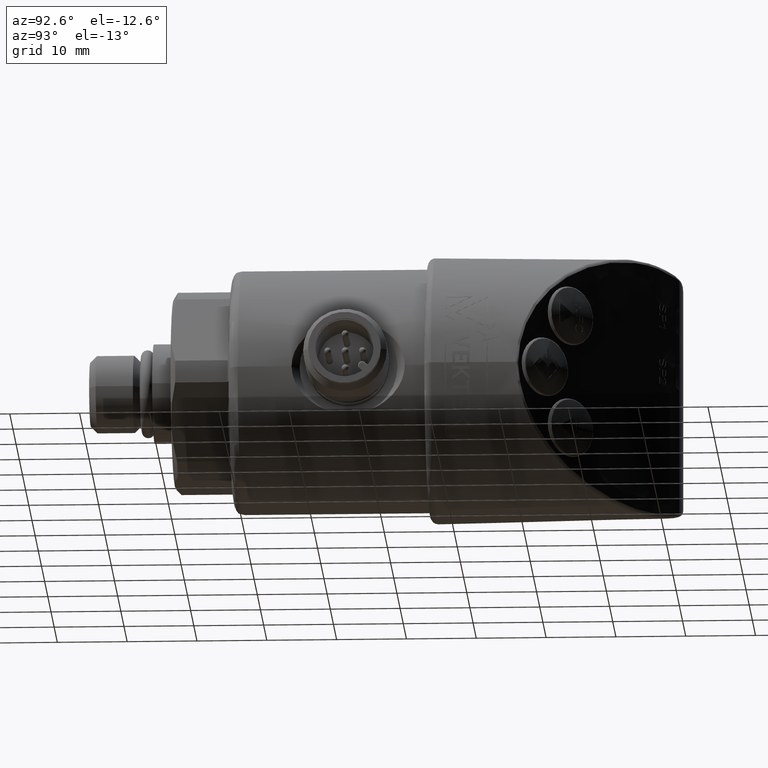
[diagram: clean part render]
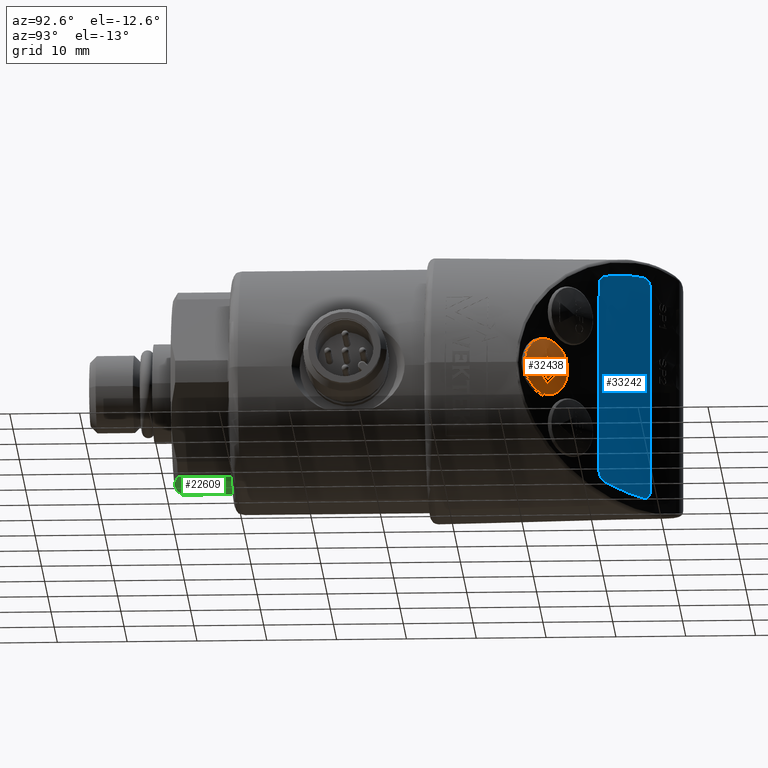
[diagram: same view with three faces highlighted in distinct colors, each labeled with its STEP entity id]
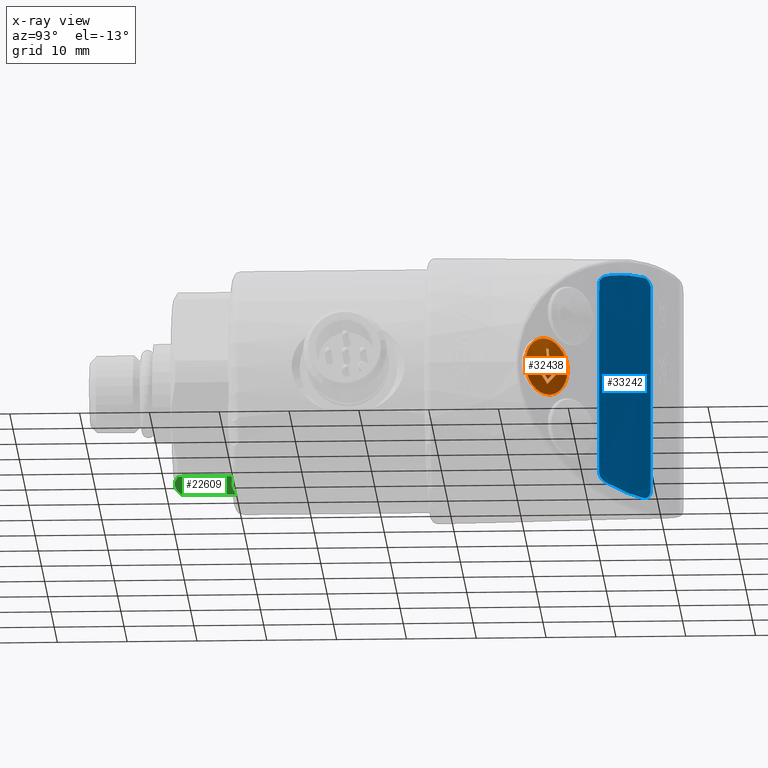
[diagram: x-ray of the same camera — body ghosted, the three highlighted faces saturated]
A machine part, auxiliary view with three faces highlighted in distinct colors.
The next image is the same camera in x-ray (body ghosted, the three faces saturated) — at least one of them is partly hidden behind the body in this view.
Their STEP definitions:

[orange] entity #32438 — the highlighted spherical surface has radius 20 mm.
#12687=CARTESIAN_POINT('',(6.123373191063E-1,2.122199557891E0,
-1.605100237652E-1));
#12688=CARTESIAN_POINT('',(6.150494045137E-1,2.119337575506E0,
-1.605124153829E-1));
#12689=CARTESIAN_POINT('',(6.205443394184E-1,2.113545690024E0,
-1.602094785053E-1));
#12690=CARTESIAN_POINT('',(6.287860830189E-1,2.104868163579E0,
-1.588080503253E-1));
#12691=CARTESIAN_POINT('',(6.370311966246E-1,2.096204944022E0,
-1.564251608243E-1));
#12692=CARTESIAN_POINT('',(6.451822708537E-1,2.087658270856E0,
-1.530596927430E-1));
#12693=CARTESIAN_POINT('',(6.531895893945E-1,2.079281256714E0,
-1.487082143256E-1));
#12694=CARTESIAN_POINT('',(6.609891299122E-1,2.071141396957E0,
-1.433796265297E-1));
#12695=CARTESIAN_POINT('',(6.685064813708E-1,2.063315581406E0,
-1.371073366537E-1));
#12696=CARTESIAN_POINT('',(6.756729006373E-1,2.055874745974E0,
-1.299368081993E-1));
#12697=CARTESIAN_POINT('',(6.824307886474E-1,2.048876553572E0,
-1.219239999840E-1));
#12698=CARTESIAN_POINT('',(6.887407518514E-1,2.042360011222E0,
-1.131125401164E-1));
#12699=CARTESIAN_POINT('',(6.945699722940E-1,2.036355950494E0,
-1.035425132508E-1));
#12700=CARTESIAN_POINT('',(6.998823676638E-1,2.030898870903E0,
-9.325654960236E-2));
#12701=CARTESIAN_POINT('',(7.046388487600E-1,2.026025263755E0,
-8.231157436347E-2));
#12702=CARTESIAN_POINT('',(7.088026675887E-1,2.021769199573E0,
-7.076917390649E-2));
#12703=CARTESIAN_POINT('',(7.123405015908E-1,2.018161006845E0,
-5.869105571994E-2));
#12704=CARTESIAN_POINT('',(7.152208291595E-1,2.015228904076E0,
-4.614559891016E-2));
#12705=CARTESIAN_POINT('',(7.174116483473E-1,2.013002382647E0,
-3.321734533302E-2));
#12706=CARTESIAN_POINT('',(7.188860003097E-1,2.011505631329E0,
-2.001234919172E-2));
#12707=CARTESIAN_POINT('',(7.196252213189E-1,2.010755795100E0,
-6.644548482596E-3));
#12708=CARTESIAN_POINT('',(7.196216088784E-1,2.010759471323E0,
6.773887358375E-3));
#12709=CARTESIAN_POINT('',(7.188753004136E-1,2.011516476448E0,
2.014050988061E-2));
#12710=CARTESIAN_POINT('',(7.173939248546E-1,2.013020393283E0,
3.334324356264E-2));
#12711=CARTESIAN_POINT('',(7.151963674354E-1,2.015253775420E0,
4.626827913507E-2));
#12712=CARTESIAN_POINT('',(7.123095295886E-1,2.018192567476E0,
5.880963139740E-2));
#12713=CARTESIAN_POINT('',(7.087655374423E-1,2.021807106562E0,
7.088288531018E-2));
#12714=CARTESIAN_POINT('',(7.045958722673E-1,2.026069242166E0,
8.241977955724E-2));
#12715=CARTESIAN_POINT('',(6.998338614601E-1,2.030948637473E0,
9.335869073645E-2));
#12716=CARTESIAN_POINT('',(6.945162698155E-1,2.036411182317E0,
1.036381506405E-1));
#12717=CARTESIAN_POINT('',(6.886821594278E-1,2.042420449025E0,
1.132011481963E-1));
#12718=CARTESIAN_POINT('',(6.823677118024E-1,2.048941775211E0,
1.220051705038E-1));
#12719=CARTESIAN_POINT('',(6.756057162867E-1,2.055944421760E0,
1.300099650214E-1));
#12720=CARTESIAN_POINT('',(6.684357267475E-1,2.063389133305E0,
1.371720758391E-1));
#12721=CARTESIAN_POINT('',(6.609154588879E-1,2.071218198369E0,
1.434353041034E-1));
#12722=CARTESIAN_POINT('',(6.531138208044E-1,2.079360421217E0,
1.487545419060E-1));
#12723=CARTESIAN_POINT('',(6.451050731038E-1,2.087739133767E0,
1.530964380762E-1));
#12724=CARTESIAN_POINT('',(6.369530384289E-1,2.096286979787E0,
1.564524948646E-1));
#12725=CARTESIAN_POINT('',(6.287072389606E-1,2.104951091747E0,
1.588260432693E-1));
#12726=CARTESIAN_POINT('',(6.204914109182E-1,2.113601489339E0,
1.602139139678E-1));
#12727=CARTESIAN_POINT('',(6.150230034612E-1,2.119365436921E0,
1.605123871451E-1));
#12728=CARTESIAN_POINT('',(6.123373240238E-1,2.122199552700E0,
1.605100240459E-1));
#12730=CARTESIAN_POINT('',(6.123373240238E-1,2.122199552700E0,
1.605100240459E-1));
#12731=CARTESIAN_POINT('',(6.096719283317E-1,2.125012249723E0,
1.605076772109E-1));
#12732=CARTESIAN_POINT('',(6.041908443435E-1,2.130795031301E0,
1.602006157524E-1));
#12733=CARTESIAN_POINT('',(5.959225270820E-1,2.139539032013E0,
1.588009844051E-1));
#12734=CARTESIAN_POINT('',(5.875445630584E-1,2.148404297865E0,
1.563936928994E-1));
#12735=CARTESIAN_POINT('',(5.792239784130E-1,2.157215524859E0,
1.529845189415E-1));
#12736=CARTESIAN_POINT('',(5.710127797896E-1,2.165913803481E0,
1.485663813998E-1));
#12737=CARTESIAN_POINT('',(5.629723213482E-1,2.174432496436E0,
1.431383849856E-1));
#12738=CARTESIAN_POINT('',(5.551738814745E-1,2.182693788077E0,
1.367175167003E-1));
#12739=CARTESIAN_POINT('',(5.476958115298E-1,2.190613499805E0,
1.293386287342E-1));
#12740=CARTESIAN_POINT('',(5.406203150219E-1,2.198103613150E0,
1.210620613498E-1));
#12741=CARTESIAN_POINT('',(5.340190078548E-1,2.205087993656E0,
1.119611378625E-1));
#12742=CARTESIAN_POINT('',(5.279534099453E-1,2.211501847510E0,
1.021187619069E-1));
#12743=CARTESIAN_POINT('',(5.224711368819E-1,2.217295262111E0,
9.161914053003E-2));
#12744=CARTESIAN_POINT('',(5.176105730892E-1,2.222428599283E0,
8.054749822929E-2));
#12745=CARTESIAN_POINT('',(5.133991687045E-1,2.226873802487E0,
6.898373968612E-2));
#12746=CARTESIAN_POINT('',(5.098569834217E-1,2.230610642001E0,
5.699910120109E-2));
#12747=CARTESIAN_POINT('',(5.070016032307E-1,2.233621667622E0,
4.466399344313E-2));
#12748=CARTESIAN_POINT('',(5.048480661805E-1,2.235891676544E0,
3.205393864370E-2));
#12749=CARTESIAN_POINT('',(5.034096454070E-1,2.237407576602E0,
1.925351366530E-2));
#12750=CARTESIAN_POINT('',(5.026926909693E-1,2.238162967113E0,
6.344681647727E-3));
#12751=CARTESIAN_POINT('',(5.026997795390E-1,2.238155513912E0,
-6.596272275750E-3));
#12752=CARTESIAN_POINT('',(5.034306987234E-1,2.237385377633E0,
-1.950348268012E-2));
#12753=CARTESIAN_POINT('',(5.048831349755E-1,2.235854729057E0,
-3.230082166106E-2));
#12754=CARTESIAN_POINT('',(5.070503717140E-1,2.233570240846E0,
-4.490635827096E-2));
#12755=CARTESIAN_POINT('',(5.099193157314E-1,2.230544907573E0,
-5.723543123068E-2));
#12756=CARTESIAN_POINT('',(5.134746277303E-1,2.226794171412E0,
-6.921254277409E-2));
#12757=CARTESIAN_POINT('',(5.176988367593E-1,2.222335410661E0,
-8.076737112951E-2));
#12758=CARTESIAN_POINT('',(5.225717505093E-1,2.217188973582E0,
-9.182866147858E-2));
#12759=CARTESIAN_POINT('',(5.280657662717E-1,2.211383069676E0,
-1.023164487963E-1));
#12760=CARTESIAN_POINT('',(5.341422592387E-1,2.204957637891E0,
-1.121451114073E-1));
#12761=CARTESIAN_POINT('',(5.407531879982E-1,2.197962975362E0,
-1.212306497293E-1));
#12762=CARTESIAN_POINT('',(5.478368095500E-1,2.190464219709E0,
-1.294898965461E-1));
#12763=CARTESIAN_POINT('',(5.553211239797E-1,2.182537806706E0,
-1.368502371405E-1));
#12764=CARTESIAN_POINT('',(5.631241411632E-1,2.174271667135E0,
-1.432515309798E-1));
#12765=CARTESIAN_POINT('',(5.711676723747E-1,2.165749688802E0,
-1.486599442993E-1));
#12766=CARTESIAN_POINT('',(5.793810426757E-1,2.157049179565E0,
-1.530585310844E-1));
#12767=CARTESIAN_POINT('',(5.877028957117E-1,2.148236667671E0,
-1.564486008464E-1));
#12768=CARTESIAN_POINT('',(5.960814855346E-1,2.139370908449E0,
-1.588369897970E-1));
#12769=CARTESIAN_POINT('',(6.042973562949E-1,2.130682472694E0,
-1.602096299145E-1));
#12770=CARTESIAN_POINT('',(6.097249475321E-1,2.124956301859E0,
-1.605077170600E-1));
#12771=CARTESIAN_POINT('',(6.123373191063E-1,2.122199557891E0,
-1.605100237652E-1));
#12878=CARTESIAN_POINT('',(4.603801388557E-2,1.599341836480E0,
-7.752412859893E-3));
#12879=DIRECTION('',(-5.359817478799E-1,5.849214378793E-1,-6.087614290088E-1));
#12880=DIRECTION('',(7.011895218990E-1,7.100191595951E-1,6.485404680444E-2));
#12881=AXIS2_PLACEMENT_3D('',#12878,#12879,#12880);
#12887=CARTESIAN_POINT('',(4.860718723024E-2,1.596538075768E0,
4.834377604294E-3));
#12888=DIRECTION('',(5.359817478799E-1,-5.849214378793E-1,-6.087614290088E-1));
#12889=DIRECTION('',(7.314295687903E-1,6.818259904554E-1,-1.114022614808E-2));
#12890=AXIS2_PLACEMENT_3D('',#12887,#12888,#12889);
#12896=CARTESIAN_POINT('',(5.286359710575E-2,1.591893019487E0,
4.330708661417E-2));
#12897=DIRECTION('',(0.E0,0.E0,1.E0));
#12898=DIRECTION('',(7.569093870422E-1,6.535198388782E-1,0.E0));
#12899=AXIS2_PLACEMENT_3D('',#12896,#12897,#12898);
#12905=CARTESIAN_POINT('',(5.070962320352E-2,1.594243669518E0,0.E0));
#12906=DIRECTION('',(6.755902076157E-1,-7.372773368101E-1,0.E0));
#12907=DIRECTION('',(7.361613419306E-1,6.745675867176E-1,5.500045087862E-2));
#12908=AXIS2_PLACEMENT_3D('',#12905,#12906,#12907);
#12914=CARTESIAN_POINT('',(5.286359710575E-2,1.591893019487E0,
1.023622047244E-1));
#12915=DIRECTION('',(0.E0,0.E0,1.E0));
#12916=DIRECTION('',(7.345122295102E-1,6.785954499552E-1,0.E0));
#12917=AXIS2_PLACEMENT_3D('',#12914,#12915,#12916);
#12923=CARTESIAN_POINT('',(3.741060336843E-2,1.608757002920E0,0.E0));
#12924=DIRECTION('',(-6.755902076157E-1,7.372773368101E-1,0.E0));
#12925=DIRECTION('',(7.310154901148E-1,6.698522822818E-1,1.300548850836E-1));
#12926=AXIS2_PLACEMENT_3D('',#12923,#12924,#12925);
#12932=CARTESIAN_POINT('',(5.286359710575E-2,1.591893019487E0,
4.330708661417E-2));
#12933=DIRECTION('',(0.E0,0.E0,1.E0));
#12934=DIRECTION('',(7.173101977879E-1,6.967539595506E-1,0.E0));
#12935=AXIS2_PLACEMENT_3D('',#12932,#12933,#12934);
#12976=CARTESIAN_POINT('',(2.319189684315E-2,1.624273998225E0,
-4.391967190778E-2));
#12977=DIRECTION('',(4.777144171083E-1,-5.213338044736E-1,7.071067811865E-1));
#12978=DIRECTION('',(7.627202248568E-1,6.455302622016E-1,-3.935148251733E-2));
#12979=AXIS2_PLACEMENT_3D('',#12976,#12977,#12978);
#12985=CARTESIAN_POINT('',(2.319189684319E-2,1.624273998225E0,
4.391967190773E-2));
#12986=DIRECTION('',(4.777144171083E-1,-5.213338044736E-1,-7.071067811865E-1));
#12987=DIRECTION('',(6.971646968910E-1,7.147242278307E-1,-5.595233293378E-2));
#12988=AXIS2_PLACEMENT_3D('',#12985,#12986,#12987);
#12994=CARTESIAN_POINT('',(4.304591337158E-2,1.602607141207E0,
-1.453201012018E-2));
#12995=DIRECTION('',(4.777144171083E-1,-5.213338044736E-1,7.071067811865E-1));
#12996=DIRECTION('',(6.972824827027E-1,7.146214627621E-1,5.579699163666E-2));
#12997=AXIS2_PLACEMENT_3D('',#12994,#12995,#12996);
#13003=CARTESIAN_POINT('',(1.378806973479E-2,1.634536474691E0,
5.783909673419E-2));
#13004=DIRECTION('',(-4.777144171083E-1,5.213338044736E-1,7.071067811865E-1));
#13005=DIRECTION('',(7.244871443926E-1,6.890384972522E-1,-1.855604791866E-2));
#13006=AXIS2_PLACEMENT_3D('',#13003,#13004,#13005);
#13012=CARTESIAN_POINT('',(1.378806973477E-2,1.634536474691E0,
-5.783909673421E-2));
#13013=DIRECTION('',(-4.777144171083E-1,5.213338044736E-1,-7.071067811865E-1));
#13014=DIRECTION('',(6.833488837239E-1,7.263468228680E-1,7.385523693560E-2));
#13015=AXIS2_PLACEMENT_3D('',#13012,#13013,#13014);
#13021=CARTESIAN_POINT('',(8.313564065700E-2,1.558856881015E0,
-4.480829237902E-2));
#13022=DIRECTION('',(4.777144171083E-1,-5.213338044736E-1,-7.071067811865E-1));
#13023=DIRECTION('',(6.834749086617E-1,7.262445468989E-1,-7.369468996765E-2));
#13024=AXIS2_PLACEMENT_3D('',#13021,#13022,#13023);
#13030=CARTESIAN_POINT('',(8.313564065705E-2,1.558856881015E0,
4.480829237909E-2));
#13031=DIRECTION('',(4.777144171083E-1,-5.213338044736E-1,7.071067811865E-1));
#13032=DIRECTION('',(7.734408821266E-1,6.312921177687E-1,-5.709171479667E-2));
#13033=AXIS2_PLACEMENT_3D('',#13030,#13031,#13032);
#13039=CARTESIAN_POINT('',(5.387779702003E-2,1.590786214499E0,
-1.501205764754E-3));
#13040=DIRECTION('',(-4.777144171083E-1,5.213338044736E-1,7.071067811865E-1));
#13041=DIRECTION('',(7.733315114908E-1,6.314427895591E-1,5.690673816977E-2));
#13042=AXIS2_PLACEMENT_3D('',#13039,#13040,#13041);
#13048=CARTESIAN_POINT('',(7.373181354860E-2,1.569119357481E0,
3.088886755257E-2));
#13049=DIRECTION('',(-4.777144171083E-1,5.213338044736E-1,-7.071067811865E-1));
#13050=DIRECTION('',(7.385646692689E-1,6.741799338634E-1,-1.909472079422E-3));
#13051=AXIS2_PLACEMENT_3D('',#13048,#13049,#13050);
#13057=CARTESIAN_POINT('',(7.373181354854E-2,1.569119357481E0,
-3.088886755247E-2));
#13058=DIRECTION('',(-4.777144171083E-1,5.213338044736E-1,7.071067811865E-1));
#13059=DIRECTION('',(7.626818697013E-1,6.455793606987E-1,3.928937094072E-2));
#13060=AXIS2_PLACEMENT_3D('',#13057,#13058,#13059);
#19562=VERTEX_POINT('',#12730);
#19563=VERTEX_POINT('',#12771);
#19564=CARTESIAN_POINT('',(5.980835343836E-1,2.158338918268E0,
4.330708661407E-2));
#19565=CARTESIAN_POINT('',(6.245066898810E-1,2.133381629205E0,
-3.937007874104E-3));
#19566=VERTEX_POINT('',#19564);
#19567=VERTEX_POINT('',#19565);
#19568=CARTESIAN_POINT('',(6.168198525316E-1,2.139687760442E0,
4.330708661417E-2));
#19569=VERTEX_POINT('',#19568);
#19570=CARTESIAN_POINT('',(6.127704386237E-1,2.135977156241E0,
1.023622047244E-1));
#19571=VERTEX_POINT('',#19570);
#19572=CARTESIAN_POINT('',(6.263117500295E-1,2.121685842159E0,
1.023622047244E-1));
#19573=VERTEX_POINT('',#19572);
#19574=CARTESIAN_POINT('',(6.303594712992E-1,2.125394895342E0,
4.330708661416E-2));
#19575=VERTEX_POINT('',#19574);
#19576=CARTESIAN_POINT('',(6.479531203404E-1,2.105696674192E0,
4.330708661417E-2));
#19577=VERTEX_POINT('',#19576);
#19578=CARTESIAN_POINT('',(6.218876129425E-1,2.130981687358E0,
-7.480853946037E-2));
#19579=CARTESIAN_POINT('',(5.704299322876E-1,2.185295352385E0,
1.029870633218E-13));
#19580=VERTEX_POINT('',#19578);
#19581=VERTEX_POINT('',#19579);
#19582=CARTESIAN_POINT('',(6.733438382217E-1,2.076666688726E0,
4.049885427015E-14));
#19583=VERTEX_POINT('',#19582);
#19584=CARTESIAN_POINT('',(6.543831628011E-1,2.099152142049E0,
2.938766178764E-2));
#19585=VERTEX_POINT('',#19584);
#19586=CARTESIAN_POINT('',(6.627980336599E-1,2.087983454143E0,
4.330708661420E-2));
#19587=VERTEX_POINT('',#19586);
#19588=CARTESIAN_POINT('',(6.901688206496E-1,2.054324951825E0,
2.207956040223E-14));
#19589=VERTEX_POINT('',#19588);
#19590=CARTESIAN_POINT('',(6.195592469568E-1,2.128848133021E0,
-1.026473891134E-1));
#19591=VERTEX_POINT('',#19590);
#19592=CARTESIAN_POINT('',(5.489468997500E-1,2.203368772759E0,
4.675426712453E-14));
#19593=VERTEX_POINT('',#19592);
#19594=CARTESIAN_POINT('',(5.811639765210E-1,2.174151076847E0,
4.330708661406E-2));
#19595=VERTEX_POINT('',#19594);
#19596=CARTESIAN_POINT('',(5.919001968929E-1,2.165109513865E0,
2.938766178765E-2));
#19597=VERTEX_POINT('',#19596);
#32390=CARTESIAN_POINT('',(5.286359710575E-2,1.591893019487E0,0.E0));
#32391=DIRECTION('',(7.071067811865E-1,-7.071067811865E-1,0.E0));
#32392=DIRECTION('',(-6.830127018922E-1,-6.830127018922E-1,2.588190451025E-1));
#32393=AXIS2_PLACEMENT_3D('',#32390,#32391,#32392);
#32394=SPHERICAL_SURFACE('',#32393,7.874015748031E-1);
#32396=ORIENTED_EDGE('',*,*,#32395,.T.);
#32397=ORIENTED_EDGE('',*,*,#32373,.T.);
#32398=EDGE_LOOP('',(#32396,#32397));
#32399=FACE_OUTER_BOUND('',#32398,.F.);
#32401=ORIENTED_EDGE('',*,*,#32400,.F.);
#32403=ORIENTED_EDGE('',*,*,#32402,.F.);
#32405=ORIENTED_EDGE('',*,*,#32404,.F.);
#32407=ORIENTED_EDGE('',*,*,#32406,.F.);
#32409=ORIENTED_EDGE('',*,*,#32408,.F.);
#32411=ORIENTED_EDGE('',*,*,#32410,.F.);
#32413=ORIENTED_EDGE('',*,*,#32412,.F.);
#32414=EDGE_LOOP('',(#32401,#32403,#32405,#32407,#32409,#32411,#32413));
#32415=FACE_BOUND('',#32414,.F.);
#32417=ORIENTED_EDGE('',*,*,#32416,.F.);
#32419=ORIENTED_EDGE('',*,*,#32418,.F.);
#32421=ORIENTED_EDGE('',*,*,#32420,.F.);
#32423=ORIENTED_EDGE('',*,*,#32422,.F.);
#32425=ORIENTED_EDGE('',*,*,#32424,.F.);
#32427=ORIENTED_EDGE('',*,*,#32426,.F.);
#32429=ORIENTED_EDGE('',*,*,#32428,.F.);
#32431=ORIENTED_EDGE('',*,*,#32430,.F.);
#32433=ORIENTED_EDGE('',*,*,#32432,.F.);
#32435=ORIENTED_EDGE('',*,*,#32434,.F.);
#32436=EDGE_LOOP('',(#32417,#32419,#32421,#32423,#32425,#32427,#32429,#32431,
#32433,#32435));
#32437=FACE_BOUND('',#32436,.F.);
#12729=B_SPLINE_CURVE_WITH_KNOTS('',3,(#12687,#12688,#12689,#12690,#12691,
#12692,#12693,#12694,#12695,#12696,#12697,#12698,#12699,#12700,#12701,#12702,
#12703,#12704,#12705,#12706,#12707,#12708,#12709,#12710,#12711,#12712,#12713,
#12714,#12715,#12716,#12717,#12718,#12719,#12720,#12721,#12722,#12723,#12724,
#12725,#12726,#12727,#12728),.UNSPECIFIED.,.F.,.F.,(4,1,1,1,1,1,1,1,1,1,1,1,1,1,
1,1,1,1,1,1,1,1,1,1,1,1,1,1,1,1,1,1,1,1,1,1,1,1,1,4),(0.E0,2.397305502549E-2,
4.852533499089E-2,7.317102639444E-2,9.800064583137E-2,1.230249969864E-1,
1.482309359926E-1,1.735485489411E-1,1.989274599467E-1,2.243237193919E-1,
2.497784516298E-1,2.753616870589E-1,3.011302154432E-1,3.270611014841E-1,
3.531721816637E-1,3.794971765682E-1,4.060354494848E-1,4.327877482115E-1,
4.596854596137E-1,4.866469119574E-1,5.136134619959E-1,5.405740191870E-1,
5.674704133953E-1,5.942210230852E-1,6.207572810915E-1,6.470801072838E-1,
6.731892015341E-1,6.991182416781E-1,7.248854080733E-1,7.504677063999E-1,
7.759215508671E-1,8.013171802925E-1,8.266954713989E-1,8.520120359535E-1,
8.772154561448E-1,9.022371006504E-1,9.270644355735E-1,9.517088789738E-1,
9.762604788194E-1,1.E0),.UNSPECIFIED.);
#12772=B_SPLINE_CURVE_WITH_KNOTS('',3,(#12730,#12731,#12732,#12733,#12734,
#12735,#12736,#12737,#12738,#12739,#12740,#12741,#12742,#12743,#12744,#12745,
#12746,#12747,#12748,#12749,#12750,#12751,#12752,#12753,#12754,#12755,#12756,
#12757,#12758,#12759,#12760,#12761,#12762,#12763,#12764,#12765,#12766,#12767,
#12768,#12769,#12770,#12771),.UNSPECIFIED.,.F.,.F.,(4,1,1,1,1,1,1,1,1,1,1,1,1,1,
1,1,1,1,1,1,1,1,1,1,1,1,1,1,1,1,1,1,1,1,1,1,1,1,1,4),(0.E0,2.322758285883E-2,
4.774981406770E-2,7.254980605834E-2,9.766491618377E-2,1.230867259149E-1,
1.488357531429E-1,1.748489257857E-1,2.010777271814E-1,2.274121633589E-1,
2.537591900333E-1,2.800617326673E-1,3.062898143840E-1,3.323940607783E-1,
3.583833068772E-1,3.842897758078E-1,4.101314927763E-1,4.359397978491E-1,
4.616988470754E-1,4.874098267624E-1,5.130902140917E-1,5.388010468828E-1,
5.645604962525E-1,5.903701007558E-1,6.162128647143E-1,6.421205917792E-1,
6.681117155476E-1,6.942180993978E-1,7.204484997108E-1,7.467526432584E-1,
7.730988934887E-1,7.994310210352E-1,8.256541393922E-1,8.516593570271E-1,
8.773998928695E-1,9.028143613588E-1,9.279228150863E-1,9.527171587775E-1,
9.772347035390E-1,1.E0),.UNSPECIFIED.);
#12882=CIRCLE('',#12881,7.872985879807E-1);
#12891=CIRCLE('',#12890,7.873615276496E-1);
#12900=CIRCLE('',#12899,7.862097279044E-1);
#12909=CIRCLE('',#12908,7.873951199006E-1);
#12918=CIRCLE('',#12917,7.807196801967E-1);
#12927=CIRCLE('',#12926,7.870692797015E-1);
#12936=CIRCLE('',#12935,7.862097279044E-1);
#12980=CIRCLE('',#12979,7.849480013616E-1);
#12989=CIRCLE('',#12988,7.849480013616E-1);
#12998=CIRCLE('',#12997,7.871333313780E-1);
#13007=CIRCLE('',#13006,7.831414417463E-1);
#13016=CIRCLE('',#13015,7.831414417463E-1);
#13025=CIRCLE('',#13024,7.848475481714E-1);
#13034=CIRCLE('',#13033,7.848475481714E-1);
#13043=CIRCLE('',#13042,7.873987127021E-1);
#13052=CIRCLE('',#13051,7.861889058777E-1);
#13061=CIRCLE('',#13060,7.861889058777E-1);
#32373=EDGE_CURVE('',#19562,#19563,#12772,.T.);
#32395=EDGE_CURVE('',#19563,#19562,#12729,.T.);
#32400=EDGE_CURVE('',#19566,#19567,#12882,.T.);
#32402=EDGE_CURVE('',#19569,#19566,#12936,.T.);
#32404=EDGE_CURVE('',#19571,#19569,#12927,.T.);
#32406=EDGE_CURVE('',#19573,#19571,#12918,.T.);
#32408=EDGE_CURVE('',#19575,#19573,#12909,.T.);
#32410=EDGE_CURVE('',#19577,#19575,#12900,.T.);
#32412=EDGE_CURVE('',#19567,#19577,#12891,.T.);
#32416=EDGE_CURVE('',#19580,#19581,#12980,.T.);
#32418=EDGE_CURVE('',#19583,#19580,#13061,.T.);
#32420=EDGE_CURVE('',#19585,#19583,#13052,.T.);
#32422=EDGE_CURVE('',#19587,#19585,#13043,.T.);
#32424=EDGE_CURVE('',#19589,#19587,#13034,.T.);
#32426=EDGE_CURVE('',#19591,#19589,#13025,.T.);
#32428=EDGE_CURVE('',#19593,#19591,#13016,.T.);
#32430=EDGE_CURVE('',#19595,#19593,#13007,.T.);
#32432=EDGE_CURVE('',#19597,#19595,#12998,.T.);
#32434=EDGE_CURVE('',#19581,#19597,#12989,.T.);
#32438=ADVANCED_FACE('',(#32399,#32415,#32437),#32394,.T.);

[blue] entity #33242 — the highlighted face is a SurfaceOfExtrusion surface.
#1079=CARTESIAN_POINT('',(2.688850042398E-1,2.442763717E0,-5.945213088394E-1));
#1080=CARTESIAN_POINT('',(2.652345279695E-1,2.446131541372E0,
-5.958210882696E-1));
#1081=CARTESIAN_POINT('',(2.582046754370E-1,2.452601725237E0,
-5.982806911193E-1));
#1082=CARTESIAN_POINT('',(2.485056826545E-1,2.461490107504E0,
-6.015323305002E-1));
#1083=CARTESIAN_POINT('',(2.395772771122E-1,2.469639314157E0,
-6.043998955734E-1));
#1084=CARTESIAN_POINT('',(2.311570385507E-1,2.477295712985E0,
-6.069826132098E-1));
#1085=CARTESIAN_POINT('',(2.226700923033E-1,2.484983818822E0,
-6.094632352916E-1));
#1086=CARTESIAN_POINT('',(2.139722688468E-1,2.492831971515E0,
-6.118809155905E-1));
#1087=CARTESIAN_POINT('',(2.050098350003E-1,2.500885600442E0,
-6.142444085716E-1));
#1088=CARTESIAN_POINT('',(1.959139811829E-1,2.509023761296E0,
-6.165156273166E-1));
#1089=CARTESIAN_POINT('',(1.869890857941E-1,2.516974123849E0,
-6.186193446885E-1));
#1090=CARTESIAN_POINT('',(1.781636165600E-1,2.524801953190E0,
-6.205776446406E-1));
#1091=CARTESIAN_POINT('',(1.693674481763E-1,2.532569680260E0,
-6.224076485260E-1));
#1092=CARTESIAN_POINT('',(1.606040832495E-1,2.540274241378E0,
-6.241103859967E-1));
#1093=CARTESIAN_POINT('',(1.518252711752E-1,2.547957925472E0,
-6.256958942151E-1));
#1094=CARTESIAN_POINT('',(1.429713427113E-1,2.555672048613E0,
-6.271750239183E-1));
#1095=CARTESIAN_POINT('',(1.339602744064E-1,2.563486723038E0,
-6.285596841486E-1));
#1096=CARTESIAN_POINT('',(1.246308605919E-1,2.571537623479E0,
-6.298689018892E-1));
#1097=CARTESIAN_POINT('',(1.157755929463E-1,2.579140978502E0,
-6.309923788511E-1));
#1098=CARTESIAN_POINT('',(1.077424565349E-1,2.586006838580E0,
-6.319031402124E-1));
#1099=CARTESIAN_POINT('',(1.000473378125E-1,2.592556614187E0,
-6.326719875068E-1));
#1100=CARTESIAN_POINT('',(9.188385315411E-2,2.599474330696E0,
-6.333745194999E-1));
#1101=CARTESIAN_POINT('',(8.426256355287E-2,2.605902760178E0,
-6.339284330042E-1));
#1102=CARTESIAN_POINT('',(7.768386282251E-2,2.611429609299E0,
-6.343413207320E-1));
#1103=CARTESIAN_POINT('',(7.182460978424E-2,2.616334935362E0,
-6.346749162743E-1));
#1104=CARTESIAN_POINT('',(6.657486673360E-2,2.620715986454E0,
-6.349634817006E-1));
#1105=CARTESIAN_POINT('',(6.185700585343E-2,2.624641812516E0,
-6.352209997854E-1));
#1106=CARTESIAN_POINT('',(5.758767745066E-2,2.628185054130E0,
-6.354476393040E-1));
#1107=CARTESIAN_POINT('',(5.371469184783E-2,2.631391603773E0,
-6.356365351408E-1));
#1108=CARTESIAN_POINT('',(5.020477996246E-2,2.634291137504E0,
-6.357890509468E-1));
#1109=CARTESIAN_POINT('',(4.703400358506E-2,2.636905232736E0,
-6.359044359600E-1));
#1110=CARTESIAN_POINT('',(4.419245656414E-2,2.639243614941E0,
-6.359766902654E-1));
#1111=CARTESIAN_POINT('',(4.167806442218E-2,2.641309385669E0,
-6.360001664899E-1));
#1112=CARTESIAN_POINT('',(3.946666851586E-2,2.643123587732E0,
-6.359775899908E-1));
#1113=CARTESIAN_POINT('',(3.754223047454E-2,2.644700358241E0,
-6.359171661024E-1));
#1114=CARTESIAN_POINT('',(3.587512271277E-2,2.646064783552E0,
-6.358287121711E-1));
#1115=CARTESIAN_POINT('',(3.437199777553E-2,2.647293806718E0,
-6.357141730484E-1));
#1116=CARTESIAN_POINT('',(3.297540801476E-2,2.648434696499E0,
-6.355744246062E-1));
#1117=CARTESIAN_POINT('',(3.165322802503E-2,2.649513886358E0,
-6.354103519068E-1));
#1118=CARTESIAN_POINT('',(3.038505265492E-2,2.650548156849E0,
-6.352217142874E-1));
#1119=CARTESIAN_POINT('',(2.916667628913E-2,2.651541036137E0,
-6.350096087633E-1));
#1120=CARTESIAN_POINT('',(2.799367247877E-2,2.652496219518E0,
-6.347751895999E-1));
#1121=CARTESIAN_POINT('',(2.686607140064E-2,2.653413763263E0,
-6.345206023696E-1));
#1122=CARTESIAN_POINT('',(2.577909565497E-2,2.654297630297E0,
-6.342465411374E-1));
#1123=CARTESIAN_POINT('',(2.472428841230E-2,2.655154757448E0,
-6.339518941405E-1));
#1124=CARTESIAN_POINT('',(2.369910464944E-2,2.655987261174E0,
-6.336370925456E-1));
#1125=CARTESIAN_POINT('',(2.270587298482E-2,2.656793298799E0,
-6.333045537506E-1));
#1126=CARTESIAN_POINT('',(2.174334517025E-2,2.657573931784E0,
-6.329551200685E-1));
#1127=CARTESIAN_POINT('',(2.080829939484E-2,2.658331816205E0,
-6.325882124618E-1));
#1128=CARTESIAN_POINT('',(1.989732451487E-2,2.659069754082E0,
-6.322034851599E-1));
#1129=CARTESIAN_POINT('',(1.900599724232E-2,2.659791359170E0,
-6.318003214897E-1));
#1130=CARTESIAN_POINT('',(1.813084248096E-2,2.660499469123E0,
-6.313777476990E-1));
#1131=CARTESIAN_POINT('',(1.726955022276E-2,2.661195973096E0,
-6.309346560739E-1));
#1132=CARTESIAN_POINT('',(1.641950185565E-2,2.661883005372E0,
-6.304698483892E-1));
#1133=CARTESIAN_POINT('',(1.557722859319E-2,2.662563381841E0,
-6.299819787237E-1));
#1134=CARTESIAN_POINT('',(1.474113903158E-2,2.663238396213E0,
-6.294700739723E-1));
#1135=CARTESIAN_POINT('',(1.391450356459E-2,2.663905417745E0,
-6.289357435763E-1));
#1136=CARTESIAN_POINT('',(1.309821105688E-2,2.664563742538E0,
-6.283796033974E-1));
#1137=CARTESIAN_POINT('',(1.228796618724E-2,2.665216845211E0,
-6.277989381295E-1));
#1138=CARTESIAN_POINT('',(1.148194041328E-2,2.665866205042E0,
-6.271920762821E-1));
#1139=CARTESIAN_POINT('',(1.068414534411E-2,2.666508597392E0,
-6.265616544970E-1));
#1140=CARTESIAN_POINT('',(9.896061399378E-3,2.667142842096E0,
-6.259088556187E-1));
#1141=CARTESIAN_POINT('',(9.113187984829E-3,2.667772570559E0,
-6.252297511090E-1));
#1142=CARTESIAN_POINT('',(8.333225439993E-3,2.668399636639E0,
-6.245216380995E-1));
#1143=CARTESIAN_POINT('',(7.558196516892E-3,2.669022418437E0,
-6.237859700567E-1));
#1144=CARTESIAN_POINT('',(6.789124352658E-3,2.669640100507E0,
-6.230233903657E-1));
#1145=CARTESIAN_POINT('',(6.025702776634E-3,2.670252935606E0,
-6.222328511001E-1));
#1146=CARTESIAN_POINT('',(5.268011621478E-3,2.670860866239E0,
-6.214137132097E-1));
#1147=CARTESIAN_POINT('',(4.516103667677E-3,2.671463856751E0,
-6.205657226054E-1));
#1148=CARTESIAN_POINT('',(3.771126030294E-3,2.672060994148E0,
-6.196896071528E-1));
#1149=CARTESIAN_POINT('',(3.037900333074E-3,2.672648424273E0,
-6.187902945169E-1));
#1150=CARTESIAN_POINT('',(2.319446600038E-3,2.673223743317E0,
-6.178714093028E-1));
#1151=CARTESIAN_POINT('',(1.615834702531E-3,2.673786912185E0,
-6.169331492483E-1));
#1152=CARTESIAN_POINT('',(9.280217456206E-4,2.674337181571E0,
-6.159767850118E-1));
#1153=CARTESIAN_POINT('',(2.580048677482E-4,2.674872971906E0,
-6.150050954704E-1));
#1154=CARTESIAN_POINT('',(-3.924833844231E-4,2.675392917505E0,
-6.140208665529E-1));
#1155=CARTESIAN_POINT('',(-1.021572770411E-3,2.675895544537E0,
-6.130274404523E-1));
#1156=CARTESIAN_POINT('',(-1.627904665407E-3,2.676379789591E0,
-6.120276929088E-1));
#1157=CARTESIAN_POINT('',(-2.210646874149E-3,2.676845010385E0,
-6.110236401974E-1));
#1158=CARTESIAN_POINT('',(-2.769584561655E-3,2.677291057499E0,
-6.100165849436E-1));
#1159=CARTESIAN_POINT('',(-3.306021324163E-3,2.677718991896E0,
-6.090051160163E-1));
#1160=CARTESIAN_POINT('',(-3.820468534785E-3,2.678129240364E0,
-6.079889532580E-1));
#1161=CARTESIAN_POINT('',(-4.312185310615E-3,2.678521230376E0,
-6.069703707317E-1));
#1162=CARTESIAN_POINT('',(-4.781310554817E-3,2.678895090595E0,
-6.059501137487E-1));
#1163=CARTESIAN_POINT('',(-5.229612420512E-3,2.679252246419E0,
-6.049250596685E-1));
#1164=CARTESIAN_POINT('',(-5.657798963038E-3,2.679593276422E0,
-6.038939133638E-1));
#1165=CARTESIAN_POINT('',(-6.064552584065E-3,2.679917145347E0,
-6.028607596603E-1));
#1166=CARTESIAN_POINT('',(-6.449872688931E-3,2.680223866881E0,
-6.018268801542E-1));
#1167=CARTESIAN_POINT('',(-6.816642295983E-3,2.680515748363E0,
-6.007847231770E-1));
#1168=CARTESIAN_POINT('',(-7.165461479017E-3,2.680793277710E0,
-5.997317447285E-1));
#1169=CARTESIAN_POINT('',(-7.491914318682E-3,2.681052952646E0,
-5.986827788358E-1));
#1170=CARTESIAN_POINT('',(-7.795374206578E-3,2.681294287049E0,
-5.976431495657E-1));
#1171=CARTESIAN_POINT('',(-8.081949167371E-3,2.681522148323E0,
-5.965909647556E-1));
#1172=CARTESIAN_POINT('',(-8.354272471885E-3,2.681738637096E0,
-5.955125622962E-1));
#1173=CARTESIAN_POINT('',(-8.611214923826E-3,2.681942862115E0,
-5.944141158697E-1));
#1174=CARTESIAN_POINT('',(-8.852924387547E-3,2.682134947289E0,
-5.932959003808E-1));
#1175=CARTESIAN_POINT('',(-9.079867736438E-3,2.682315269433E0,
-5.921482331999E-1));
#1176=CARTESIAN_POINT('',(-9.293056189827E-3,2.682484637378E0,
-5.909587270055E-1));
#1177=CARTESIAN_POINT('',(-9.498266717081E-3,2.682647644422E0,
-5.896940803548E-1));
#1178=CARTESIAN_POINT('',(-9.695436226629E-3,2.682804242682E0,
-5.883411140971E-1));
#1179=CARTESIAN_POINT('',(-9.875739697381E-3,2.682947426956E0,
-5.869409311306E-1));
#1180=CARTESIAN_POINT('',(-1.003888780193E-2,2.683076972756E0,
-5.854906205743E-1));
#1181=CARTESIAN_POINT('',(-1.018957552670E-2,2.683196611939E0,
-5.839345111720E-1));
#1182=CARTESIAN_POINT('',(-1.032768153003E-2,2.683306251073E0,
-5.822371877899E-1));
#1183=CARTESIAN_POINT('',(-1.045139739197E-2,2.683404457487E0,
-5.803767024855E-1));
#1184=CARTESIAN_POINT('',(-1.055890019806E-2,2.683489787164E0,
-5.783136148141E-1));
#1185=CARTESIAN_POINT('',(-1.064718024243E-2,2.683559854213E0,
-5.760038223402E-1));
#1186=CARTESIAN_POINT('',(-1.071357510551E-2,2.683612548408E0,
-5.733753225854E-1));
#1187=CARTESIAN_POINT('',(-1.075488770088E-2,2.683645334880E0,
-5.703690649587E-1));
#1188=CARTESIAN_POINT('',(-1.076988185328E-2,2.683657234309E0,
-5.670123608943E-1));
#1189=CARTESIAN_POINT('',(-1.076620020410E-2,2.683654312542E0,
-5.633067979475E-1));
#1190=CARTESIAN_POINT('',(-1.075723433436E-2,2.683647197139E0,
-5.592338353324E-1));
#1191=CARTESIAN_POINT('',(-1.076177358181E-2,2.683650799542E0,
-5.547210085327E-1));
#1192=CARTESIAN_POINT('',(-1.077917738614E-2,2.683664611312E0,
-5.497860063390E-1));
#1193=CARTESIAN_POINT('',(-1.080205544571E-2,2.683682767204E0,
-5.444019791953E-1));
#1194=CARTESIAN_POINT('',(-1.082245544341E-2,2.683698956250E0,
-5.384965149309E-1));
#1195=CARTESIAN_POINT('',(-1.083110655979E-2,2.683705821533E0,
-5.319908857791E-1));
#1196=CARTESIAN_POINT('',(-1.082944721098E-2,2.683704504722E0,
-5.248756900888E-1));
#1197=CARTESIAN_POINT('',(-1.082493447126E-2,2.683700923528E0,
-5.171193121073E-1));
#1198=CARTESIAN_POINT('',(-1.082383811344E-2,2.683700053484E0,
-5.086716978579E-1));
#1199=CARTESIAN_POINT('',(-1.082548085743E-2,2.683701357126E0,
-4.995120846466E-1));
#1200=CARTESIAN_POINT('',(-1.082681489908E-2,2.683702415787E0,
-4.895889694459E-1));
#1201=CARTESIAN_POINT('',(-1.082630521454E-2,2.683702011315E0,
-4.788128226708E-1));
#1202=CARTESIAN_POINT('',(-1.082551639444E-2,2.683701385327E0,
-4.671555060133E-1));
#1203=CARTESIAN_POINT('',(-1.082537990037E-2,2.683701277008E0,
-4.545239503380E-1));
#1204=CARTESIAN_POINT('',(-1.082561776330E-2,2.683701465771E0,
-4.408754591272E-1));
#1205=CARTESIAN_POINT('',(-1.082568281388E-2,2.683701517393E0,
-4.261259369204E-1));
#1206=CARTESIAN_POINT('',(-1.082566011262E-2,2.683701499378E0,
-4.102051671539E-1));
#1207=CARTESIAN_POINT('',(-1.082564362931E-2,2.683701486297E0,
-3.930329207655E-1));
#1208=CARTESIAN_POINT('',(-1.082563700671E-2,2.683701481042E0,
-3.745110261488E-1));
#1209=CARTESIAN_POINT('',(-1.082564258682E-2,2.683701485470E0,
-3.545346673228E-1));
#1210=CARTESIAN_POINT('',(-1.082564585309E-2,2.683701488062E0,
-3.329943749357E-1));
#1211=CARTESIAN_POINT('',(-1.082564365695E-2,2.683701486319E0,
-3.097682511031E-1));
#1212=CARTESIAN_POINT('',(-1.082564289242E-2,2.683701485712E0,
-2.847283428125E-1));
#1213=CARTESIAN_POINT('',(-1.082564340496E-2,2.683701486119E0,
-2.577326772307E-1));
#1214=CARTESIAN_POINT('',(-1.082564444792E-2,2.683701486947E0,
-2.286281197689E-1));
#1215=CARTESIAN_POINT('',(-1.082564079159E-2,2.683701484045E0,
-1.972490434384E-1));
#1216=CARTESIAN_POINT('',(-1.082564460854E-2,2.683701487074E0,
-1.634089942884E-1));
#1217=CARTESIAN_POINT('',(-1.082565273842E-2,2.683701493526E0,
-1.269064106972E-1));
#1218=CARTESIAN_POINT('',(-1.082561051752E-2,2.683701460020E0,
-8.751898422369E-2));
#1219=CARTESIAN_POINT('',(-1.082568105917E-2,2.683701516001E0,
-4.501500904565E-2));
#1220=CARTESIAN_POINT('',(-1.082567533825E-2,2.683701511461E0,
9.607553616768E-4));
#1221=CARTESIAN_POINT('',(-1.082550562393E-2,2.683701376780E0,
5.040008528510E-2));
#1222=CARTESIAN_POINT('',(-1.082561238939E-2,2.683701461506E0,
1.046128534128E-1));
#1223=CARTESIAN_POINT('',(-1.082577115291E-2,2.683701587497E0,
1.510494452365E-1));
#1224=CARTESIAN_POINT('',(-1.082578791069E-2,2.683701600795E0,
1.920530235710E-1));
#1225=CARTESIAN_POINT('',(-1.082562610466E-2,2.683701472390E0,2.283689369E-1));
#1226=CARTESIAN_POINT('',(-1.082559146846E-2,2.683701444904E0,
2.608054612018E-1));
#1227=CARTESIAN_POINT('',(-1.082563371173E-2,2.683701478427E0,
2.899110440636E-1));
#1228=CARTESIAN_POINT('',(-1.082574014093E-2,2.683701562886E0,
3.161639091076E-1));
#1229=CARTESIAN_POINT('',(-1.082554248148E-2,2.683701406029E0,
3.398537283865E-1));
#1230=CARTESIAN_POINT('',(-1.082549218423E-2,2.683701366114E0,
3.613074692335E-1));
#1231=CARTESIAN_POINT('',(-1.082586871282E-2,2.683701664918E0,
3.808924478472E-1));
#1232=CARTESIAN_POINT('',(-1.082586850411E-2,2.683701664752E0,
3.987662130680E-1));
#1233=CARTESIAN_POINT('',(-1.082544559001E-2,2.683701329138E0,
4.151005984119E-1));
#1234=CARTESIAN_POINT('',(-1.082521350236E-2,2.683701144959E0,
4.300535253199E-1));
#1235=CARTESIAN_POINT('',(-1.082535415805E-2,2.683701256580E0,
4.437680727078E-1));
#1236=CARTESIAN_POINT('',(-1.082601875979E-2,2.683701783991E0,
4.563550386462E-1));
#1237=CARTESIAN_POINT('',(-1.082684141594E-2,2.683702436830E0,
4.679230745939E-1));
#1238=CARTESIAN_POINT('',(-1.082667094819E-2,2.683702301551E0,
4.785599280892E-1));
#1239=CARTESIAN_POINT('',(-1.082524650552E-2,2.683701171150E0,
4.883550644463E-1));
#1240=CARTESIAN_POINT('',(-1.082396629503E-2,2.683700155206E0,
4.973755933641E-1));
#1241=CARTESIAN_POINT('',(-1.082362776374E-2,2.683699886556E0,
5.056922677758E-1));
#1242=CARTESIAN_POINT('',(-1.082413017298E-2,2.683700285255E0,
5.133631104236E-1));
#1243=CARTESIAN_POINT('',(-1.082504331579E-2,2.683701009903E0,
5.204415416987E-1));
#1244=CARTESIAN_POINT('',(-1.082658360637E-2,2.683702232239E0,
5.269815807301E-1));
#1245=CARTESIAN_POINT('',(-1.082612623586E-2,2.683701869281E0,
5.330197991640E-1));
#1246=CARTESIAN_POINT('',(-1.082650843735E-2,2.683702172587E0,
5.385933970162E-1));
#1247=CARTESIAN_POINT('',(-1.082422681861E-2,2.683700361952E0,
5.437392632192E-1));
#1248=CARTESIAN_POINT('',(-1.082258210212E-2,2.683699056743E0,
5.484824886446E-1));
#1249=CARTESIAN_POINT('',(-1.082315145519E-2,2.683699508568E0,
5.528484952507E-1));
#1250=CARTESIAN_POINT('',(-1.082300574969E-2,2.683699392940E0,
5.568619702534E-1));
#1251=CARTESIAN_POINT('',(-1.082030201607E-2,2.683697247320E0,
5.605506850895E-1));
#1252=CARTESIAN_POINT('',(-1.081317426315E-2,2.683691590887E0,
5.639463982407E-1));
#1253=CARTESIAN_POINT('',(-1.082773573392E-2,2.683703146551E0,
5.670804010442E-1));
#1254=CARTESIAN_POINT('',(-1.081288658142E-2,2.683691362595E0,
5.699829677097E-1));
#1255=CARTESIAN_POINT('',(-1.079924610698E-2,2.683680537732E0,
5.726889209048E-1));
#1256=CARTESIAN_POINT('',(-1.076700096513E-2,2.683654948184E0,
5.751724966589E-1));
#1257=CARTESIAN_POINT('',(-1.071303695496E-2,2.683612121424E0,
5.773988004862E-1));
#1258=CARTESIAN_POINT('',(-1.063911092261E-2,2.683553449888E0,
5.793436860878E-1));
#1259=CARTESIAN_POINT('',(-1.054832486854E-2,2.683481393307E0,
5.810643872778E-1));
#1260=CARTESIAN_POINT('',(-1.044269311787E-2,2.683397548158E0,
5.826127753590E-1));
#1261=CARTESIAN_POINT('',(-1.032229676059E-2,2.683301976352E0,
5.840430939999E-1));
#1262=CARTESIAN_POINT('',(-1.018476922130E-2,2.683192796160E0,
5.854066877586E-1));
#1263=CARTESIAN_POINT('',(-1.003072160431E-2,2.683070488967E0,
5.867189824268E-1));
#1264=CARTESIAN_POINT('',(-9.859580025435E-3,2.682934595040E0,
5.879970629505E-1));
#1265=CARTESIAN_POINT('',(-9.669574921890E-3,2.682783704271E0,
5.892577431161E-1));
#1266=CARTESIAN_POINT('',(-9.461634921341E-3,2.682618548448E0,
5.904957901571E-1));
#1267=CARTESIAN_POINT('',(-9.237095624227E-3,2.682440182583E0,
5.917061329384E-1));
#1268=CARTESIAN_POINT('',(-8.997946759672E-3,2.682250181645E0,
5.928824285688E-1));
#1269=CARTESIAN_POINT('',(-8.744413095471E-3,2.682048718728E0,
5.940281853382E-1));
#1270=CARTESIAN_POINT('',(-8.475478114663E-3,2.681834980051E0,
5.951507523427E-1));
#1271=CARTESIAN_POINT('',(-8.189804925766E-3,2.681607896187E0,
5.962564870685E-1));
#1272=CARTESIAN_POINT('',(-7.885802908159E-3,2.681366194684E0,
5.973514576070E-1));
#1273=CARTESIAN_POINT('',(-7.562586597153E-3,2.681109162365E0,
5.984399972602E-1));
#1274=CARTESIAN_POINT('',(-7.218878184188E-3,2.680835772844E0,
5.995263157200E-1));
#1275=CARTESIAN_POINT('',(-6.852876779373E-3,2.680544581836E0,
6.006150449868E-1));
#1276=CARTESIAN_POINT('',(-6.464445613584E-3,2.680235467329E0,
6.017051079846E-1));
#1277=CARTESIAN_POINT('',(-6.053992066298E-3,2.679908739696E0,
6.027942084932E-1));
#1278=CARTESIAN_POINT('',(-5.621955747079E-3,2.679564734560E0,
6.038803168686E-1));
#1279=CARTESIAN_POINT('',(-5.168734924777E-3,2.679203754285E0,
6.049617686243E-1));
#1280=CARTESIAN_POINT('',(-4.694590591128E-3,2.678825991507E0,
6.060373852853E-1));
#1281=CARTESIAN_POINT('',(-4.199874538867E-3,2.678431710801E0,
6.071059274747E-1));
#1282=CARTESIAN_POINT('',(-3.685001877075E-3,2.678021226929E0,
6.081660967008E-1));
#1283=CARTESIAN_POINT('',(-3.150528809545E-3,2.677594967011E0,
6.092162773969E-1));
#1284=CARTESIAN_POINT('',(-2.597078915996E-3,2.677153411954E0,
6.102549331765E-1));
#1285=CARTESIAN_POINT('',(-2.025325689316E-3,2.676697082703E0,
6.112806081333E-1));
#1286=CARTESIAN_POINT('',(-1.435629021116E-3,2.676226250055E0,
6.122925429593E-1));
#1287=CARTESIAN_POINT('',(-8.283820435705E-4,2.675741211280E0,
6.132899588368E-1));
#1288=CARTESIAN_POINT('',(-2.040143726944E-4,2.675242292871E0,
6.142720767353E-1));
#1289=CARTESIAN_POINT('',(4.373764238259E-4,2.674729555943E0,
6.152386533331E-1));
#1290=CARTESIAN_POINT('',(1.095722667908E-3,2.674203037366E0,
6.161894491988E-1));
#1291=CARTESIAN_POINT('',(1.770991679813E-3,2.673662745648E0,
6.171242123691E-1));
#1292=CARTESIAN_POINT('',(2.462931885868E-3,2.673108864164E0,
6.180425028481E-1));
#1293=CARTESIAN_POINT('',(3.171249629708E-3,2.672541609952E0,
6.189438568184E-1));
#1294=CARTESIAN_POINT('',(3.895609881817E-3,2.671961233285E0,
6.198277608087E-1));
#1295=CARTESIAN_POINT('',(4.636014442849E-3,2.671367714461E0,
6.206941065506E-1));
#1296=CARTESIAN_POINT('',(5.392460689052E-3,2.670761037031E0,
6.215427385401E-1));
#1297=CARTESIAN_POINT('',(6.165338722774E-3,2.670140868676E0,
6.223738292138E-1));
#1298=CARTESIAN_POINT('',(6.952047928665E-3,2.669509277544E0,
6.231844205734E-1));
#1299=CARTESIAN_POINT('',(7.749021795650E-3,2.668869112157E0,
6.239710434318E-1));
#1300=CARTESIAN_POINT('',(8.552625946378E-3,2.668223281466E0,
6.247307802750E-1));
#1301=CARTESIAN_POINT('',(9.359645209860E-3,2.667574363375E0,
6.254609095661E-1));
#1302=CARTESIAN_POINT('',(1.016693390951E-2,2.666924885144E0,
6.261590571932E-1));
#1303=CARTESIAN_POINT('',(1.097102316453E-2,2.666277639918E0,
6.268231073210E-1));
#1304=CARTESIAN_POINT('',(1.177122501223E-2,2.665633186555E0,
6.274535203995E-1));
#1305=CARTESIAN_POINT('',(1.256709226547E-2,2.664991890530E0,
6.280509268823E-1));
#1306=CARTESIAN_POINT('',(1.335803640105E-2,2.664354232470E0,
6.286159028640E-1));
#1307=CARTESIAN_POINT('',(1.414719743973E-2,2.663717685715E0,
6.291515225669E-1));
#1308=CARTESIAN_POINT('',(1.493808615713E-2,2.663079418683E0,
6.296605763527E-1));
#1309=CARTESIAN_POINT('',(1.573430164070E-2,2.662436522822E0,
6.301452966332E-1));
#1310=CARTESIAN_POINT('',(1.654011026999E-2,2.661785544253E0,
6.306086204322E-1));
#1311=CARTESIAN_POINT('',(1.735986229502E-2,2.661122954276E0,
6.310530724662E-1));
#1312=CARTESIAN_POINT('',(1.819870720161E-2,2.660444569169E0,
6.314808677159E-1));
#1313=CARTESIAN_POINT('',(1.905439137029E-2,2.659752187510E0,
6.318901209597E-1));
#1314=CARTESIAN_POINT('',(1.992355210371E-2,2.659048510232E0,
6.322787844015E-1));
#1315=CARTESIAN_POINT('',(2.080289568923E-2,2.658336189091E0,
6.326452824274E-1));
#1316=CARTESIAN_POINT('',(2.169758101973E-2,2.657611028798E0,
6.329915169531E-1));
#1317=CARTESIAN_POINT('',(2.261280188271E-2,2.656868794866E0,
6.333186465222E-1));
#1318=CARTESIAN_POINT('',(2.355450158647E-2,2.656104634806E0,
6.336276585947E-1));
#1319=CARTESIAN_POINT('',(2.453206219380E-2,2.655310890459E0,
6.339207679748E-1));
#1320=CARTESIAN_POINT('',(2.555449591089E-2,2.654480183415E0,
6.341990702666E-1));
#1321=CARTESIAN_POINT('',(2.663116426254E-2,2.653604829670E0,
6.344629831566E-1));
#1322=CARTESIAN_POINT('',(2.777035262499E-2,2.652677995938E0,
6.347119259809E-1));
#1323=CARTESIAN_POINT('',(2.897810226515E-2,2.651694652450E0,
6.349444310874E-1));
#1324=CARTESIAN_POINT('',(3.026048412970E-2,2.650649723211E0,
6.351588715548E-1));
#1325=CARTESIAN_POINT('',(3.162410284659E-2,2.649537676482E0,
6.353537612629E-1));
#1326=CARTESIAN_POINT('',(3.309329073213E-2,2.648338476415E0,
6.355286326230E-1));
#1327=CARTESIAN_POINT('',(3.469082735858E-2,2.647033266341E0,
6.356811600967E-1));
#1328=CARTESIAN_POINT('',(3.644232531729E-2,2.645600779307E0,
6.358081655306E-1));
#1329=CARTESIAN_POINT('',(3.838159227026E-2,2.644012910337E0,
6.359060028776E-1));
#1330=CARTESIAN_POINT('',(4.054096123140E-2,2.642242587638E0,
6.359706072519E-1));
#1331=CARTESIAN_POINT('',(4.296243067847E-2,2.640254593660E0,
6.359949973795E-1));
#1332=CARTESIAN_POINT('',(4.568624936689E-2,2.638014858277E0,
6.359718322655E-1));
#1333=CARTESIAN_POINT('',(4.875611520683E-2,2.635486122673E0,
6.358974314450E-1));
#1334=CARTESIAN_POINT('',(5.219207802369E-2,2.632650234823E0,
6.357681727398E-1));
#1335=CARTESIAN_POINT('',(5.600122324890E-2,2.629499476229E0,
6.355837372953E-1));
#1336=CARTESIAN_POINT('',(6.019618974057E-2,2.626021286504E0,
6.353515547232E-1));
#1337=CARTESIAN_POINT('',(6.479518337029E-2,2.622198190297E0,
6.350801466383E-1));
#1338=CARTESIAN_POINT('',(6.982787288028E-2,2.618002767537E0,
6.347836716363E-1));
#1339=CARTESIAN_POINT('',(7.530210177107E-2,2.613425380790E0,
6.344596004463E-1));
#1340=CARTESIAN_POINT('',(8.138698967814E-2,2.608320991889E0,
6.340896250106E-1));
#1341=CARTESIAN_POINT('',(8.845183297229E-2,2.602372283864E0,
6.336162506428E-1));
#1342=CARTESIAN_POINT('',(9.587398120690E-2,2.596096224590E0,
6.330441096785E-1));
#1343=CARTESIAN_POINT('',(1.030487024224E-1,2.590004351799E0,
6.323926372662E-1));
#1344=CARTESIAN_POINT('',(1.102506158125E-1,2.583865924087E0,
6.316368476811E-1));
#1345=CARTESIAN_POINT('',(1.184727835700E-1,2.576829314206E0,
6.306634129494E-1));
#1346=CARTESIAN_POINT('',(1.278463746277E-1,2.568767652282E0,
6.294321664110E-1));
#1347=CARTESIAN_POINT('',(1.370023736856E-1,2.560852226859E0,
6.281072055950E-1));
#1348=CARTESIAN_POINT('',(1.455854402798E-1,2.553397856918E0,
6.267498492961E-1));
#1349=CARTESIAN_POINT('',(1.544352743227E-1,2.545677468553E0,
6.252322638912E-1));
#1350=CARTESIAN_POINT('',(1.635686274121E-1,2.537672258398E0,
6.235417064595E-1));
#1351=CARTESIAN_POINT('',(1.727440637832E-1,2.529592473345E0,
6.217193092401E-1));
#1352=CARTESIAN_POINT('',(1.818379550765E-1,2.521547034608E0,
6.197874410342E-1));
#1353=CARTESIAN_POINT('',(1.901276689531E-1,2.514180891205E0,
6.179101300870E-1));
#1354=CARTESIAN_POINT('',(1.977991990148E-1,2.507338348310E0,
6.160637963669E-1));
#1355=CARTESIAN_POINT('',(2.061140364291E-1,2.499895415193E0,
6.139469495015E-1));
#1356=CARTESIAN_POINT('',(2.157055940485E-1,2.491270978915E0,
6.113635151344E-1));
#1357=CARTESIAN_POINT('',(2.239289794481E-1,2.483844199368E0,
6.090522347177E-1));
#1358=CARTESIAN_POINT('',(2.311635990981E-1,2.477288129045E0,
6.069516785990E-1));
#1359=CARTESIAN_POINT('',(2.375549284096E-1,2.471478338128E0,
6.050417793416E-1));
#1360=CARTESIAN_POINT('',(2.432438819475E-1,2.466293219795E0,
6.032992594410E-1));
#1361=CARTESIAN_POINT('',(2.483174234498E-1,2.461658071158E0,
6.017077337347E-1));
#1362=CARTESIAN_POINT('',(2.528472936823E-1,2.457511004150E0,
6.002537659702E-1));
#1363=CARTESIAN_POINT('',(2.569119201281E-1,2.453782987533E0,
5.989223012023E-1));
#1364=CARTESIAN_POINT('',(2.605242998759E-1,2.450464319703E0,
5.976951972451E-1));
#1365=CARTESIAN_POINT('',(2.636820394455E-1,2.447559170244E0,
5.965707699773E-1));
#1366=CARTESIAN_POINT('',(2.664328342447E-1,2.445025282238E0,
5.955402015033E-1));
#1367=CARTESIAN_POINT('',(2.688184778076E-1,2.442825408228E0,
5.945976050247E-1));
#1368=CARTESIAN_POINT('',(2.708963624097E-1,2.440907552664E0,
5.937280857351E-1));
#1369=CARTESIAN_POINT('',(2.726649913559E-1,2.439273850781E0,
5.929505144454E-1));
#1370=CARTESIAN_POINT('',(2.742692047372E-1,2.437791016926E0,
5.922048718556E-1));
#1371=CARTESIAN_POINT('',(2.757425088701E-1,2.436428321198E0,
5.914827450990E-1));
#1372=CARTESIAN_POINT('',(2.770700795796E-1,2.435199722102E0,
5.907985766377E-1));
#1373=CARTESIAN_POINT('',(2.783327525812E-1,2.434030570613E0,
5.901096689363E-1));
#1374=CARTESIAN_POINT('',(2.794931397530E-1,2.432955592958E0,
5.894462993807E-1));
#1375=CARTESIAN_POINT('',(2.805650934063E-1,2.431962101009E0,
5.887989050584E-1));
#1376=CARTESIAN_POINT('',(2.816379422508E-1,2.430967353218E0,
5.881171543465E-1));
#1377=CARTESIAN_POINT('',(2.826731290286E-1,2.430007107584E0,
5.874246691930E-1));
#1378=CARTESIAN_POINT('',(2.836217065507E-1,2.429126852402E0,
5.867576549082E-1));
#1379=CARTESIAN_POINT('',(2.845694936644E-1,2.428247008787E0,
5.860585280670E-1));
#1380=CARTESIAN_POINT('',(2.855630394341E-1,2.427324322210E0,
5.852896541503E-1));
#1381=CARTESIAN_POINT('',(2.864985340706E-1,2.426455202238E0,
5.845311762576E-1));
#1382=CARTESIAN_POINT('',(2.873976072078E-1,2.425619629928E0,
5.837691340914E-1));
#1383=CARTESIAN_POINT('',(2.883687638851E-1,2.424716720718E0,
5.829079220134E-1));
#1384=CARTESIAN_POINT('',(2.892306694826E-1,2.423915087329E0,
5.821095607305E-1));
#1385=CARTESIAN_POINT('',(2.901173324552E-1,2.423090159931E0,
5.812528440213E-1));
#1386=CARTESIAN_POINT('',(2.910323536170E-1,2.422238529658E0,
5.803296506575E-1));
#1387=CARTESIAN_POINT('',(2.918380139460E-1,2.421488433877E0,
5.794818551308E-1));
#1388=CARTESIAN_POINT('',(2.927044566402E-1,2.420681489233E0,
5.785318680622E-1));
#1389=CARTESIAN_POINT('',(2.935193140837E-1,2.419922325944E0,
5.776004572737E-1));
#1390=CARTESIAN_POINT('',(2.942937982601E-1,2.419200561757E0,
5.766782545894E-1));
#1391=CARTESIAN_POINT('',(2.950933208063E-1,2.418455229179E0,
5.756858313721E-1));
#1392=CARTESIAN_POINT('',(2.958054663870E-1,2.417791154511E0,
5.747651291088E-1));
#1393=CARTESIAN_POINT('',(2.965346332834E-1,2.417111023912E0,
5.737834753938E-1));
#1394=CARTESIAN_POINT('',(2.972450987692E-1,2.416448144353E0,
5.727861677156E-1));
#1395=CARTESIAN_POINT('',(2.978949642359E-1,2.415841649888E0,
5.718353982337E-1));
#1396=CARTESIAN_POINT('',(2.985652864481E-1,2.415215905090E0,
5.708130797930E-1));
#1397=CARTESIAN_POINT('',(2.991873168546E-1,2.414635091797E0,
5.698234230155E-1));
#1398=CARTESIAN_POINT('',(2.997807651015E-1,2.414080840785E0,
5.688382448618E-1));
#1399=CARTESIAN_POINT('',(3.003721998790E-1,2.413528343040E0,
5.678134275294E-1));
#1400=CARTESIAN_POINT('',(3.009212722339E-1,2.413015305014E0,
5.668190219373E-1));
#1401=CARTESIAN_POINT('',(3.014408346540E-1,2.412529742E0,5.658354688594E-1));
#1402=CARTESIAN_POINT('',(3.019352516636E-1,2.412067588935E0,
5.648557266517E-1));
#1403=CARTESIAN_POINT('',(3.024006352589E-1,2.411632494705E0,
5.638894287963E-1));
#1404=CARTESIAN_POINT('',(3.028376072054E-1,2.411223892653E0,
5.629374533553E-1));
#1405=CARTESIAN_POINT('',(3.032483293229E-1,2.410839774173E0,
5.619973623196E-1));
#1406=CARTESIAN_POINT('',(3.036343850543E-1,2.410478669611E0,
5.610675039656E-1));
#1407=CARTESIAN_POINT('',(3.039968524771E-1,2.410139580522E0,
5.601470479697E-1));
#1408=CARTESIAN_POINT('',(3.043354692083E-1,2.409822761566E0,
5.592387165243E-1));
#1409=CARTESIAN_POINT('',(3.046507833311E-1,2.409527708552E0,
5.583434223484E-1));
#1410=CARTESIAN_POINT('',(3.049444711007E-1,2.409252860536E0,
5.574582745271E-1));
#1411=CARTESIAN_POINT('',(3.052180684356E-1,2.408996786678E0,
5.565804218568E-1));
#1412=CARTESIAN_POINT('',(3.054734586727E-1,2.408757729868E0,
5.557056897104E-1));
#1413=CARTESIAN_POINT('',(3.057121097215E-1,2.408534320832E0,
5.548298784194E-1));
#1414=CARTESIAN_POINT('',(3.059354298018E-1,2.408325245369E0,
5.539486555056E-1));
#1415=CARTESIAN_POINT('',(3.061444646438E-1,2.408129527967E0,
5.530574841096E-1));
#1416=CARTESIAN_POINT('',(3.063400240296E-1,2.407946413523E0,
5.521518762302E-1));
#1417=CARTESIAN_POINT('',(3.065228481277E-1,2.407775211697E0,
5.512276749948E-1));
#1418=CARTESIAN_POINT('',(3.066933173877E-1,2.407615568656E0,
5.502805906147E-1));
#1419=CARTESIAN_POINT('',(3.068516192239E-1,2.407467311109E0,
5.493062445504E-1));
#1420=CARTESIAN_POINT('',(3.069978762554E-1,2.407330326247E0,
5.482997138459E-1));
#1421=CARTESIAN_POINT('',(3.071317315228E-1,2.407204950293E0,
5.472571734408E-1));
#1422=CARTESIAN_POINT('',(3.072532253761E-1,2.407091147230E0,
5.461706989096E-1));
#1423=CARTESIAN_POINT('',(3.073636853205E-1,2.406987675096E0,
5.450174921608E-1));
#1424=CARTESIAN_POINT('',(3.074629519826E-1,2.406894684462E0,
5.437769426509E-1));
#1425=CARTESIAN_POINT('',(3.075501472073E-1,2.406812999188E0,
5.424270211318E-1));
#1426=CARTESIAN_POINT('',(3.076250379395E-1,2.406742838725E0,
5.409226242214E-1));
#1427=CARTESIAN_POINT('',(3.076859020266E-1,2.406685817480E0,
5.392174659994E-1));
#1428=CARTESIAN_POINT('',(3.077305522463E-1,2.406643985543E0,
5.372733827008E-1));
#1429=CARTESIAN_POINT('',(3.077564861382E-1,2.406619688257E0,
5.351001065884E-1));
#1430=CARTESIAN_POINT('',(3.077697279214E-1,2.406607282039E0,
5.327044573391E-1));
#1431=CARTESIAN_POINT('',(3.077679424460E-1,2.406608954849E0,
5.300866728178E-1));
#1432=CARTESIAN_POINT('',(3.077699376020E-1,2.406607085588E0,
5.272448227291E-1));
#1433=CARTESIAN_POINT('',(3.077691213163E-1,2.406607850366E0,
5.241704397389E-1));
#1434=CARTESIAN_POINT('',(3.077699724203E-1,2.406607052966E0,
5.208387902357E-1));
#1435=CARTESIAN_POINT('',(3.077696113326E-1,2.406607391270E0,
5.172280997933E-1));
#1436=CARTESIAN_POINT('',(3.077688905175E-1,2.406608066601E0,
5.133188290853E-1));
#1437=CARTESIAN_POINT('',(3.077686306713E-1,2.406608310051E0,
5.090921281827E-1));
#1438=CARTESIAN_POINT('',(3.077688400419E-1,2.406608113892E0,
5.045227146011E-1));
#1439=CARTESIAN_POINT('',(3.077690340963E-1,2.406607932082E0,
4.995842016549E-1));
#1440=CARTESIAN_POINT('',(3.077691127254E-1,2.406607858415E0,
4.942508824676E-1));
#1441=CARTESIAN_POINT('',(3.077690971652E-1,2.406607872993E0,
4.884961778349E-1));
#1442=CARTESIAN_POINT('',(3.077690425967E-1,2.406607924118E0,
4.822879920281E-1));
#1443=CARTESIAN_POINT('',(3.077690107279E-1,2.406607953976E0,
4.755883631045E-1));
#1444=CARTESIAN_POINT('',(3.077690336802E-1,2.406607932472E0,
4.683548539915E-1));
#1445=CARTESIAN_POINT('',(3.077690465174E-1,2.406607920445E0,
4.605506425765E-1));
#1446=CARTESIAN_POINT('',(3.077690382047E-1,2.406607928233E0,
4.521321859553E-1));
#1447=CARTESIAN_POINT('',(3.077690364853E-1,2.406607929844E0,
4.430540053703E-1));
#1448=CARTESIAN_POINT('',(3.077690395445E-1,2.406607926978E0,
4.332649794007E-1));
#1449=CARTESIAN_POINT('',(3.077690380962E-1,2.406607928335E0,
4.227101561168E-1));
#1450=CARTESIAN_POINT('',(3.077690387363E-1,2.406607927735E0,
4.113319164785E-1));
#1451=CARTESIAN_POINT('',(3.077690386020E-1,2.406607927861E0,
3.990669717983E-1));
#1452=CARTESIAN_POINT('',(3.077690387519E-1,2.406607927721E0,
3.858455596605E-1));
#1453=CARTESIAN_POINT('',(3.077690388195E-1,2.406607927657E0,
3.715926377410E-1));
#1454=CARTESIAN_POINT('',(3.077690389188E-1,2.406607927564E0,
3.562290217412E-1));
#1455=CARTESIAN_POINT('',(3.077690390190E-1,2.406607927470E0,
3.396677101843E-1));
#1456=CARTESIAN_POINT('',(3.077690391288E-1,2.406607927367E0,
3.218167840165E-1));
#1457=CARTESIAN_POINT('',(3.077690392467E-1,2.406607927257E0,
3.025756213150E-1));
#1458=CARTESIAN_POINT('',(3.077690393739E-1,2.406607927138E0,
2.818360498224E-1));
#1459=CARTESIAN_POINT('',(3.077690395110E-1,2.406607927009E0,
2.594812571801E-1));
#1460=CARTESIAN_POINT('',(3.077690396586E-1,2.406607926871E0,
2.353857024484E-1));
#1461=CARTESIAN_POINT('',(3.077690398177E-1,2.406607926722E0,
2.094137133272E-1));
#1462=CARTESIAN_POINT('',(3.077690399892E-1,2.406607926561E0,
1.814191627382E-1));
#1463=CARTESIAN_POINT('',(3.077690401741E-1,2.406607926388E0,
1.512443826290E-1));
#1464=CARTESIAN_POINT('',(3.077690403734E-1,2.406607926201E0,
1.187197301440E-1));
#1465=CARTESIAN_POINT('',(3.077690405882E-1,2.406607926E0,8.366200181127E-2));
#1466=CARTESIAN_POINT('',(3.077690408197E-1,2.406607925783E0,
4.587385344055E-2));
#1467=CARTESIAN_POINT('',(3.077690410691E-1,2.406607925550E0,
5.142571537612E-3));
#1468=CARTESIAN_POINT('',(3.077690413380E-1,2.406607925298E0,
-3.876090876389E-2));
#1469=CARTESIAN_POINT('',(3.077690416279E-1,2.406607925026E0,
-8.608390687915E-2));
#1470=CARTESIAN_POINT('',(3.077690419403E-1,2.406607924733E0,
-1.370927321866E-1));
#1471=CARTESIAN_POINT('',(3.077690422768E-1,2.406607924418E0,
-1.920743708376E-1));
#1472=CARTESIAN_POINT('',(3.077690426399E-1,2.406607924078E0,
-2.513392586127E-1));
#1473=CARTESIAN_POINT('',(3.077690430308E-1,2.406607923712E0,
-3.152177553128E-1));
#1474=CARTESIAN_POINT('',(3.077690434531E-1,2.406607923316E0,
-3.840819234706E-1));
#1475=CARTESIAN_POINT('',(3.077690439078E-1,2.406607922890E0,
-4.582732061639E-1));
#1476=CARTESIAN_POINT('',(3.077690442311E-1,2.406607922587E0,
-5.116795443082E-1));
#1477=CARTESIAN_POINT('',(3.077690443980E-1,2.406607922431E0,
-5.393362446906E-1));
#1479=CARTESIAN_POINT('',(3.077690443980E-1,2.406607922431E0,
-5.393362446906E-1));
#1480=CARTESIAN_POINT('',(3.077598617376E-1,2.406616525667E0,
-5.400896108844E-1));
#1481=CARTESIAN_POINT('',(3.077205271044E-1,2.406653378344E0,
-5.415626453803E-1));
#1482=CARTESIAN_POINT('',(3.075962083681E-1,2.406769848630E0,
-5.436657448166E-1));
#1483=CARTESIAN_POINT('',(3.074137872993E-1,2.406940743222E0,
-5.456784678420E-1));
#1484=CARTESIAN_POINT('',(3.071715589982E-1,2.407167647992E0,
-5.476465115674E-1));
#1485=CARTESIAN_POINT('',(3.068687467206E-1,2.407451274938E0,
-5.495788744193E-1));
#1486=CARTESIAN_POINT('',(3.065077610186E-1,2.407789347264E0,
-5.514670875635E-1));
#1487=CARTESIAN_POINT('',(3.060839035044E-1,2.408186242263E0,
-5.533372480178E-1));
#1488=CARTESIAN_POINT('',(3.055900314065E-1,2.408648617854E0,
-5.552136335024E-1));
#1489=CARTESIAN_POINT('',(3.050275575188E-1,2.409175115208E0,
-5.570889790758E-1));
#1490=CARTESIAN_POINT('',(3.043876829791E-1,2.409773926283E0,
-5.589846927209E-1));
#1491=CARTESIAN_POINT('',(3.036737702270E-1,2.410441852173E0,
-5.608813678776E-1));
#1492=CARTESIAN_POINT('',(3.028840097443E-1,2.411180529114E0,
-5.627780088857E-1));
#1493=CARTESIAN_POINT('',(3.020150942137E-1,2.411992983817E0,
-5.646741442149E-1));
#1494=CARTESIAN_POINT('',(3.010690333083E-1,2.412877265130E0,
-5.665582020355E-1));
#1495=CARTESIAN_POINT('',(3.000344557706E-1,2.413843915657E0,
-5.684436639032E-1));
#1496=CARTESIAN_POINT('',(2.989202241939E-1,2.414884560396E0,
-5.703068418503E-1));
#1497=CARTESIAN_POINT('',(2.977138459580E-1,2.416010764446E0,
-5.721627381555E-1));
#1498=CARTESIAN_POINT('',(2.964117350446E-1,2.417225747304E0,
-5.740071623691E-1));
#1499=CARTESIAN_POINT('',(2.950348773337E-1,2.418509804751E0,
-5.758066044023E-1));
#1500=CARTESIAN_POINT('',(2.935816126150E-1,2.419864376526E0,
-5.775626579874E-1));
#1501=CARTESIAN_POINT('',(2.920234221769E-1,2.421315896172E0,
-5.793017993309E-1));
#1502=CARTESIAN_POINT('',(2.903727355285E-1,2.422852604603E0,
-5.810000027342E-1));
#1503=CARTESIAN_POINT('',(2.886487779402E-1,2.424456462528E0,
-5.826348787613E-1));
#1504=CARTESIAN_POINT('',(2.867984061256E-1,2.426176717765E0,
-5.842482842157E-1));
#1505=CARTESIAN_POINT('',(2.848246711218E-1,2.428010261201E0,
-5.858256748082E-1));
#1506=CARTESIAN_POINT('',(2.827398627665E-1,2.429945415506E0,
-5.873514538666E-1));
#1507=CARTESIAN_POINT('',(2.805533435189E-1,2.431973232128E0,
-5.888126827616E-1));
#1508=CARTESIAN_POINT('',(2.782955507961E-1,2.434065258973E0,
-5.901856367061E-1));
#1509=CARTESIAN_POINT('',(2.759875091402E-1,2.436201862266E0,
-5.914561954876E-1));
#1510=CARTESIAN_POINT('',(2.736236689427E-1,2.438388023886E0,
-5.926191537906E-1));
#1511=CARTESIAN_POINT('',(2.712513872050E-1,2.440579844781E0,
-5.936480672730E-1));
#1512=CARTESIAN_POINT('',(2.696736875311E-1,2.442036100488E0,
-5.942450746057E-1));
#1513=CARTESIAN_POINT('',(2.688850042398E-1,2.442763717E0,-5.945213088394E-1));
#18422=VERTEX_POINT('',#1079);
#18423=VERTEX_POINT('',#1477);
#33224=CARTESIAN_POINT('',(3.108511509022E-1,2.403718625428E0,
-7.574806969244E-1));
#33225=CARTESIAN_POINT('',(3.098243546620E-1,2.404681742893E0,
-7.574806969244E-1));
#33226=CARTESIAN_POINT('',(2.336578033256E-1,2.476083628863E0,
-7.574806969244E-1));
#33227=CARTESIAN_POINT('',(1.288502764172E-1,2.570207097878E0,
-7.574806969244E-1));
#33228=CARTESIAN_POINT('',(1.727027064007E-2,2.661431247576E0,
-7.574806969244E-1));
#33229=CARTESIAN_POINT('',(-1.303759643435E-2,2.685455851763E0,
-7.574806969244E-1));
#33230=CARTESIAN_POINT('',(-1.414261520742E-2,2.686330797919E0,
-7.574806969244E-1));
#33235=DIRECTION('',(0.E0,0.E0,1.E0));
#33236=VECTOR('',#33235,1.E0);
#33237=SURFACE_OF_LINEAR_EXTRUSION('',#33231,#33236);
#33238=ORIENTED_EDGE('',*,*,#21318,.F.);
#33239=ORIENTED_EDGE('',*,*,#21320,.F.);
#33240=EDGE_LOOP('',(#33238,#33239));
#33241=FACE_OUTER_BOUND('',#33240,.F.);
#1478=B_SPLINE_CURVE_WITH_KNOTS('',3,(#1079,#1080,#1081,#1082,#1083,#1084,#1085,
#1086,#1087,#1088,#1089,#1090,#1091,#1092,#1093,#1094,#1095,#1096,#1097,#1098,
#1099,#1100,#1101,#1102,#1103,#1104,#1105,#1106,#1107,#1108,#1109,#1110,#1111,
#1112,#1113,#1114,#1115,#1116,#1117,#1118,#1119,#1120,#1121,#1122,#1123,#1124,
#1125,#1126,#1127,#1128,#1129,#1130,#1131,#1132,#1133,#1134,#1135,#1136,#1137,
#1138,#1139,#1140,#1141,#1142,#1143,#1144,#1145,#1146,#1147,#1148,#1149,#1150,
#1151,#1152,#1153,#1154,#1155,#1156,#1157,#1158,#1159,#1160,#1161,#1162,#1163,
#1164,#1165,#1166,#1167,#1168,#1169,#1170,#1171,#1172,#1173,#1174,#1175,#1176,
#1177,#1178,#1179,#1180,#1181,#1182,#1183,#1184,#1185,#1186,#1187,#1188,#1189,
#1190,#1191,#1192,#1193,#1194,#1195,#1196,#1197,#1198,#1199,#1200,#1201,#1202,
#1203,#1204,#1205,#1206,#1207,#1208,#1209,#1210,#1211,#1212,#1213,#1214,#1215,
#1216,#1217,#1218,#1219,#1220,#1221,#1222,#1223,#1224,#1225,#1226,#1227,#1228,
#1229,#1230,#1231,#1232,#1233,#1234,#1235,#1236,#1237,#1238,#1239,#1240,#1241,
#1242,#1243,#1244,#1245,#1246,#1247,#1248,#1249,#1250,#1251,#1252,#1253,#1254,
#1255,#1256,#1257,#1258,#1259,#1260,#1261,#1262,#1263,#1264,#1265,#1266,#1267,
#1268,#1269,#1270,#1271,#1272,#1273,#1274,#1275,#1276,#1277,#1278,#1279,#1280,
#1281,#1282,#1283,#1284,#1285,#1286,#1287,#1288,#1289,#1290,#1291,#1292,#1293,
#1294,#1295,#1296,#1297,#1298,#1299,#1300,#1301,#1302,#1303,#1304,#1305,#1306,
#1307,#1308,#1309,#1310,#1311,#1312,#1313,#1314,#1315,#1316,#1317,#1318,#1319,
#1320,#1321,#1322,#1323,#1324,#1325,#1326,#1327,#1328,#1329,#1330,#1331,#1332,
#1333,#1334,#1335,#1336,#1337,#1338,#1339,#1340,#1341,#1342,#1343,#1344,#1345,
#1346,#1347,#1348,#1349,#1350,#1351,#1352,#1353,#1354,#1355,#1356,#1357,#1358,
#1359,#1360,#1361,#1362,#1363,#1364,#1365,#1366,#1367,#1368,#1369,#1370,#1371,
#1372,#1373,#1374,#1375,#1376,#1377,#1378,#1379,#1380,#1381,#1382,#1383,#1384,
#1385,#1386,#1387,#1388,#1389,#1390,#1391,#1392,#1393,#1394,#1395,#1396,#1397,
#1398,#1399,#1400,#1401,#1402,#1403,#1404,#1405,#1406,#1407,#1408,#1409,#1410,
#1411,#1412,#1413,#1414,#1415,#1416,#1417,#1418,#1419,#1420,#1421,#1422,#1423,
#1424,#1425,#1426,#1427,#1428,#1429,#1430,#1431,#1432,#1433,#1434,#1435,#1436,
#1437,#1438,#1439,#1440,#1441,#1442,#1443,#1444,#1445,#1446,#1447,#1448,#1449,
#1450,#1451,#1452,#1453,#1454,#1455,#1456,#1457,#1458,#1459,#1460,#1461,#1462,
#1463,#1464,#1465,#1466,#1467,#1468,#1469,#1470,#1471,#1472,#1473,#1474,#1475,
#1476,#1477),.UNSPECIFIED.,.F.,.F.,(4,1,1,1,1,1,1,1,1,1,1,1,1,1,1,1,1,1,1,1,1,1,
1,1,1,1,1,1,1,1,1,1,1,1,1,1,1,1,1,1,1,1,1,1,1,1,1,1,1,1,1,1,1,1,1,1,1,1,1,1,1,1,
1,1,1,1,1,1,1,1,1,1,1,1,1,1,1,1,1,1,1,1,1,1,1,1,1,1,1,1,1,1,1,1,1,1,1,1,1,1,1,1,
1,1,1,1,1,1,1,1,1,1,1,1,1,1,1,1,1,1,1,1,1,1,1,1,1,1,1,1,1,1,1,1,1,1,1,1,1,1,1,1,
1,1,1,1,1,1,1,1,1,1,1,1,1,1,1,1,1,1,1,1,1,1,1,1,1,1,1,1,1,1,1,1,1,1,1,1,1,1,1,1,
1,1,1,1,1,1,1,1,1,1,1,1,1,1,1,1,1,1,1,1,1,1,1,1,1,1,1,1,1,1,1,1,1,1,1,1,1,1,1,1,
1,1,1,1,1,1,1,1,1,1,1,1,1,1,1,1,1,1,1,1,1,1,1,1,1,1,1,1,1,1,1,1,1,1,1,1,1,1,1,1,
1,1,1,1,1,1,1,1,1,1,1,1,1,1,1,1,1,1,1,1,1,1,1,1,1,1,1,1,1,1,1,1,1,1,1,1,1,1,1,1,
1,1,1,1,1,1,1,1,1,1,1,1,1,1,1,1,1,1,1,1,1,1,1,1,1,1,1,1,1,1,1,1,1,1,1,1,1,1,1,1,
1,1,1,1,1,1,1,1,1,1,1,1,1,1,1,1,1,1,1,1,1,1,1,1,1,1,1,1,1,1,1,1,1,1,1,1,1,1,1,1,
1,1,1,1,1,1,1,1,1,1,1,1,1,1,4),(0.E0,2.525252525253E-3,5.050505050505E-3,
7.575757575758E-3,1.010101010101E-2,1.262626262626E-2,1.515151515152E-2,
1.767676767677E-2,2.020202020202E-2,2.272727272727E-2,2.525252525253E-2,
2.777777777778E-2,3.030303030303E-2,3.282828282828E-2,3.535353535354E-2,
3.787878787879E-2,4.040404040404E-2,4.292929292929E-2,4.545454545455E-2,
4.797979797980E-2,5.050505050505E-2,5.303030303030E-2,5.555555555556E-2,
5.808080808081E-2,6.060606060606E-2,6.313131313131E-2,6.565656565657E-2,
6.818181818182E-2,7.070707070707E-2,7.323232323232E-2,7.575757575758E-2,
7.828282828283E-2,8.080808080808E-2,8.333333333333E-2,8.585858585859E-2,
8.838383838384E-2,9.090909090909E-2,9.343434343434E-2,9.595959595960E-2,
9.848484848485E-2,1.010101010101E-1,1.035353535354E-1,1.060606060606E-1,
1.085858585859E-1,1.111111111111E-1,1.136363636364E-1,1.161616161616E-1,
1.186868686869E-1,1.212121212121E-1,1.237373737374E-1,1.262626262626E-1,
1.287878787879E-1,1.313131313131E-1,1.338383838384E-1,1.363636363636E-1,
1.388888888889E-1,1.414141414141E-1,1.439393939394E-1,1.464646464646E-1,
1.489898989899E-1,1.515151515152E-1,1.540404040404E-1,1.565656565657E-1,
1.590909090909E-1,1.616161616162E-1,1.641414141414E-1,1.666666666667E-1,
1.691919191919E-1,1.717171717172E-1,1.742424242424E-1,1.767676767677E-1,
1.792929292929E-1,1.818181818182E-1,1.843434343434E-1,1.868686868687E-1,
1.893939393939E-1,1.919191919192E-1,1.944444444444E-1,1.969696969697E-1,
1.994949494949E-1,2.020202020202E-1,2.045454545455E-1,2.070707070707E-1,
2.095959595960E-1,2.121212121212E-1,2.146464646465E-1,2.171717171717E-1,
2.196969696970E-1,2.222222222222E-1,2.247474747475E-1,2.272727272727E-1,
2.297979797980E-1,2.323232323232E-1,2.348484848485E-1,2.373737373737E-1,
2.398989898990E-1,2.424242424242E-1,2.449494949495E-1,2.474747474747E-1,2.5E-1,
2.525252525253E-1,2.550505050505E-1,2.575757575758E-1,2.601010101010E-1,
2.626262626263E-1,2.651515151515E-1,2.676767676768E-1,2.702020202020E-1,
2.727272727273E-1,2.752525252525E-1,2.777777777778E-1,2.803030303030E-1,
2.828282828283E-1,2.853535353535E-1,2.878787878788E-1,2.904040404040E-1,
2.929292929293E-1,2.954545454545E-1,2.979797979798E-1,3.005050505051E-1,
3.030303030303E-1,3.055555555556E-1,3.080808080808E-1,3.106060606061E-1,
3.131313131313E-1,3.156565656566E-1,3.181818181818E-1,3.207070707071E-1,
3.232323232323E-1,3.257575757576E-1,3.282828282828E-1,3.308080808081E-1,
3.333333333333E-1,3.358585858586E-1,3.383838383838E-1,3.409090909091E-1,
3.434343434343E-1,3.459595959596E-1,3.484848484848E-1,3.510101010101E-1,
3.535353535354E-1,3.560606060606E-1,3.585858585859E-1,3.611111111111E-1,
3.636363636364E-1,3.661616161616E-1,3.686868686869E-1,3.712121212121E-1,
3.737373737374E-1,3.762626262626E-1,3.787878787879E-1,3.813131313131E-1,
3.838383838384E-1,3.863636363636E-1,3.888888888889E-1,3.914141414141E-1,
3.939393939394E-1,3.964646464646E-1,3.989898989899E-1,4.015151515152E-1,
4.040404040404E-1,4.065656565657E-1,4.090909090909E-1,4.116161616162E-1,
4.141414141414E-1,4.166666666667E-1,4.191919191919E-1,4.217171717172E-1,
4.242424242424E-1,4.267676767677E-1,4.292929292929E-1,4.318181818182E-1,
4.343434343434E-1,4.368686868687E-1,4.393939393939E-1,4.419191919192E-1,
4.444444444444E-1,4.469696969697E-1,4.494949494949E-1,4.520202020202E-1,
4.545454545455E-1,4.570707070707E-1,4.595959595960E-1,4.621212121212E-1,
4.646464646465E-1,4.671717171717E-1,4.696969696970E-1,4.722222222222E-1,
4.747474747475E-1,4.772727272727E-1,4.797979797980E-1,4.823232323232E-1,
4.848484848485E-1,4.873737373737E-1,4.898989898990E-1,4.924242424242E-1,
4.949494949495E-1,4.974747474747E-1,5.E-1,5.025252525253E-1,5.050505050505E-1,
5.075757575758E-1,5.101010101010E-1,5.126262626263E-1,5.151515151515E-1,
5.176767676768E-1,5.202020202020E-1,5.227272727273E-1,5.252525252525E-1,
5.277777777778E-1,5.303030303030E-1,5.328282828283E-1,5.353535353535E-1,
5.378787878788E-1,5.404040404040E-1,5.429292929293E-1,5.454545454545E-1,
5.479797979798E-1,5.505050505051E-1,5.530303030303E-1,5.555555555556E-1,
5.580808080808E-1,5.606060606061E-1,5.631313131313E-1,5.656565656566E-1,
5.681818181818E-1,5.707070707071E-1,5.732323232323E-1,5.757575757576E-1,
5.782828282828E-1,5.808080808081E-1,5.833333333333E-1,5.858585858586E-1,
5.883838383838E-1,5.909090909091E-1,5.934343434343E-1,5.959595959596E-1,
5.984848484848E-1,6.010101010101E-1,6.035353535354E-1,6.060606060606E-1,
6.085858585859E-1,6.111111111111E-1,6.136363636364E-1,6.161616161616E-1,
6.186868686869E-1,6.212121212121E-1,6.237373737374E-1,6.262626262626E-1,
6.287878787879E-1,6.313131313131E-1,6.338383838384E-1,6.363636363636E-1,
6.388888888889E-1,6.414141414141E-1,6.439393939394E-1,6.464646464646E-1,
6.489898989899E-1,6.515151515152E-1,6.540404040404E-1,6.565656565657E-1,
6.590909090909E-1,6.616161616162E-1,6.641414141414E-1,6.666666666667E-1,
6.691919191919E-1,6.717171717172E-1,6.742424242424E-1,6.767676767677E-1,
6.792929292929E-1,6.818181818182E-1,6.843434343434E-1,6.868686868687E-1,
6.893939393939E-1,6.919191919192E-1,6.944444444444E-1,6.969696969697E-1,
6.994949494949E-1,7.020202020202E-1,7.045454545455E-1,7.070707070707E-1,
7.095959595960E-1,7.121212121212E-1,7.146464646465E-1,7.171717171717E-1,
7.196969696970E-1,7.222222222222E-1,7.247474747475E-1,7.272727272727E-1,
7.297979797980E-1,7.323232323232E-1,7.348484848485E-1,7.373737373737E-1,
7.398989898990E-1,7.424242424242E-1,7.449494949495E-1,7.474747474747E-1,7.5E-1,
7.525252525253E-1,7.550505050505E-1,7.575757575758E-1,7.601010101010E-1,
7.626262626263E-1,7.651515151515E-1,7.676767676768E-1,7.702020202020E-1,
7.727272727273E-1,7.752525252525E-1,7.777777777778E-1,7.803030303030E-1,
7.828282828283E-1,7.853535353535E-1,7.878787878788E-1,7.904040404040E-1,
7.929292929293E-1,7.954545454545E-1,7.979797979798E-1,8.005050505051E-1,
8.030303030303E-1,8.055555555556E-1,8.080808080808E-1,8.106060606061E-1,
8.131313131313E-1,8.156565656566E-1,8.181818181818E-1,8.207070707071E-1,
8.232323232323E-1,8.257575757576E-1,8.282828282828E-1,8.308080808081E-1,
8.333333333333E-1,8.358585858586E-1,8.383838383838E-1,8.409090909091E-1,
8.434343434343E-1,8.459595959596E-1,8.484848484848E-1,8.510101010101E-1,
8.535353535354E-1,8.560606060606E-1,8.585858585859E-1,8.611111111111E-1,
8.636363636364E-1,8.661616161616E-1,8.686868686869E-1,8.712121212121E-1,
8.737373737374E-1,8.762626262626E-1,8.787878787879E-1,8.813131313131E-1,
8.838383838384E-1,8.863636363636E-1,8.888888888889E-1,8.914141414141E-1,
8.939393939394E-1,8.964646464646E-1,8.989898989899E-1,9.015151515152E-1,
9.040404040404E-1,9.065656565657E-1,9.090909090909E-1,9.116161616162E-1,
9.141414141414E-1,9.166666666667E-1,9.191919191919E-1,9.217171717172E-1,
9.242424242424E-1,9.267676767677E-1,9.292929292929E-1,9.318181818182E-1,
9.343434343434E-1,9.368686868687E-1,9.393939393939E-1,9.419191919192E-1,
9.444444444444E-1,9.469696969697E-1,9.494949494949E-1,9.520202020202E-1,
9.545454545455E-1,9.570707070707E-1,9.595959595960E-1,9.621212121212E-1,
9.646464646465E-1,9.671717171717E-1,9.696969696970E-1,9.722222222222E-1,
9.747474747475E-1,9.772727272727E-1,9.797979797980E-1,9.823232323232E-1,
9.848484848485E-1,9.873737373737E-1,9.898989898990E-1,9.924242424242E-1,
9.949494949495E-1,9.974747474747E-1,1.E0),.UNSPECIFIED.);
#1514=B_SPLINE_CURVE_WITH_KNOTS('',3,(#1479,#1480,#1481,#1482,#1483,#1484,#1485,
#1486,#1487,#1488,#1489,#1490,#1491,#1492,#1493,#1494,#1495,#1496,#1497,#1498,
#1499,#1500,#1501,#1502,#1503,#1504,#1505,#1506,#1507,#1508,#1509,#1510,#1511,
#1512,#1513),.UNSPECIFIED.,.F.,.F.,(4,1,1,1,1,1,1,1,1,1,1,1,1,1,1,1,1,1,1,1,1,1,
1,1,1,1,1,1,1,1,1,1,4),(0.E0,3.125E-2,6.25E-2,9.375E-2,1.25E-1,1.5625E-1,
1.875E-1,2.1875E-1,2.5E-1,2.8125E-1,3.125E-1,3.4375E-1,3.75E-1,4.0625E-1,
4.375E-1,4.6875E-1,5.E-1,5.3125E-1,5.625E-1,5.9375E-1,6.25E-1,6.5625E-1,
6.875E-1,7.1875E-1,7.5E-1,7.8125E-1,8.125E-1,8.4375E-1,8.75E-1,9.0625E-1,
9.375E-1,9.6875E-1,1.E0),.UNSPECIFIED.);
#21318=EDGE_CURVE('',#18422,#18423,#1478,.T.);
#21320=EDGE_CURVE('',#18423,#18422,#1514,.T.);
#33231=B_SPLINE_CURVE_WITH_KNOTS('',3,(#33224,#33225,#33226,#33227,#33228,
#33229,#33230),.UNSPECIFIED.,.F.,.F.,(4,1,1,1,4),(0.E0,9.939076003202E-3,
7.370341139043E-1,9.904201307265E-1,1.E0),.UNSPECIFIED.);
#33242=ADVANCED_FACE('',(#33241),#33237,.T.);

[green] entity #22609 — the highlighted planar face has unit normal (0, 0, 1).
#3362=DIRECTION('',(1.E0,-1.363981844547E-13,-6.170394058665E-14));
#3363=VECTOR('',#3362,1.025586239744E-1);
#3364=CARTESIAN_POINT('',(-2.528665713039E-1,3.307086614173E-1,
-5.314960629921E-1));
#3365=LINE('',#3364,#3363);
#3371=DIRECTION('',(1.E0,1.363981844547E-13,6.170394058665E-14));
#3372=VECTOR('',#3371,1.025586239744E-1);
#3373=CARTESIAN_POINT('',(1.503079473296E-1,3.307086614173E-1,
-5.314960629921E-1));
#3374=LINE('',#3373,#3372);
#3522=CARTESIAN_POINT('',(2.339540221261E-1,3.228346456693E-1,
-5.314960629921E-1));
#3523=CARTESIAN_POINT('',(2.339540221261E-1,3.228810366252E-1,
-5.314960629921E-1));
#3524=CARTESIAN_POINT('',(2.339560585117E-1,3.229739097083E-1,
-5.314960629921E-1));
#3525=CARTESIAN_POINT('',(2.339652441790E-1,3.231133728749E-1,
-5.314960629921E-1));
#3526=CARTESIAN_POINT('',(2.339806343398E-1,3.232533495057E-1,
-5.314960629921E-1));
#3527=CARTESIAN_POINT('',(2.340023477535E-1,3.233940388544E-1,
-5.314960629921E-1));
#3528=CARTESIAN_POINT('',(2.340305564927E-1,3.235357024463E-1,
-5.314960629921E-1));
#3529=CARTESIAN_POINT('',(2.340654760744E-1,3.236785579251E-1,
-5.314960629921E-1));
#3530=CARTESIAN_POINT('',(2.341073880752E-1,3.238228777728E-1,
-5.314960629921E-1));
#3531=CARTESIAN_POINT('',(2.341566081973E-1,3.239688622331E-1,
-5.314960629921E-1));
#3532=CARTESIAN_POINT('',(2.342135396878E-1,3.241167995473E-1,
-5.314960629921E-1));
#3533=CARTESIAN_POINT('',(2.342786024421E-1,3.242668646111E-1,
-5.314960629921E-1));
#3534=CARTESIAN_POINT('',(2.343523603088E-1,3.244194061151E-1,
-5.314960629921E-1));
#3535=CARTESIAN_POINT('',(2.344353250029E-1,3.245745184718E-1,
-5.314960629921E-1));
#3536=CARTESIAN_POINT('',(2.345282241948E-1,3.247325715213E-1,
-5.314960629921E-1));
#3537=CARTESIAN_POINT('',(2.346317158612E-1,3.248936644219E-1,
-5.314960629921E-1));
#3538=CARTESIAN_POINT('',(2.347466883968E-1,3.250581318542E-1,
-5.314960629921E-1));
#3539=CARTESIAN_POINT('',(2.348739684656E-1,3.252260721661E-1,
-5.314960629921E-1));
#3540=CARTESIAN_POINT('',(2.350145882335E-1,3.253977361629E-1,
-5.314960629921E-1));
#3541=CARTESIAN_POINT('',(2.351695687741E-1,3.255732226419E-1,
-5.314960629921E-1));
#3542=CARTESIAN_POINT('',(2.353401809652E-1,3.257527834922E-1,
-5.314960629921E-1));
#3543=CARTESIAN_POINT('',(2.355277572142E-1,3.259365692470E-1,
-5.314960629921E-1));
#3544=CARTESIAN_POINT('',(2.357335841455E-1,3.261245591213E-1,
-5.314960629921E-1));
#3545=CARTESIAN_POINT('',(2.359591743102E-1,3.263168143612E-1,
-5.314960629921E-1));
#3546=CARTESIAN_POINT('',(2.362059744869E-1,3.265132144985E-1,
-5.314960629921E-1));
#3547=CARTESIAN_POINT('',(2.364758854644E-1,3.267138663917E-1,
-5.314960629921E-1));
#3548=CARTESIAN_POINT('',(2.367707908298E-1,3.269186834796E-1,
-5.314960629921E-1));
#3549=CARTESIAN_POINT('',(2.370924357623E-1,3.271273508654E-1,
-5.314960629921E-1));
#3550=CARTESIAN_POINT('',(2.374426951771E-1,3.273395226500E-1,
-5.314960629921E-1));
#3551=CARTESIAN_POINT('',(2.378233849755E-1,3.275547024585E-1,
-5.314960629921E-1));
#3552=CARTESIAN_POINT('',(2.382364956856E-1,3.277723825348E-1,
-5.314960629921E-1));
#3553=CARTESIAN_POINT('',(2.386840268418E-1,3.279919351828E-1,
-5.314960629921E-1));
#3554=CARTESIAN_POINT('',(2.391679299642E-1,3.282125920990E-1,
-5.314960629921E-1));
#3555=CARTESIAN_POINT('',(2.396898687081E-1,3.284333523399E-1,
-5.314960629921E-1));
#3556=CARTESIAN_POINT('',(2.402509154937E-1,3.286529169418E-1,
-5.314960629921E-1));
#3557=CARTESIAN_POINT('',(2.408520297416E-1,3.288699357766E-1,
-5.314960629921E-1));
#3558=CARTESIAN_POINT('',(2.414941513596E-1,3.290830315291E-1,
-5.314960629921E-1));
#3559=CARTESIAN_POINT('',(2.421780168909E-1,3.292907268349E-1,
-5.314960629921E-1));
#3560=CARTESIAN_POINT('',(2.429033587232E-1,3.294912395581E-1,
-5.314960629921E-1));
#3561=CARTESIAN_POINT('',(2.436686235029E-1,3.296825408755E-1,
-5.314960629921E-1));
#3562=CARTESIAN_POINT('',(2.444722860031E-1,3.298627666791E-1,
-5.314960629921E-1));
#3563=CARTESIAN_POINT('',(2.453124810217E-1,3.300300940132E-1,
-5.314960629921E-1));
#3564=CARTESIAN_POINT('',(2.461861819486E-1,3.301826312868E-1,
-5.314960629921E-1));
#3565=CARTESIAN_POINT('',(2.470899826428E-1,3.303186302485E-1,
-5.314960629921E-1));
#3566=CARTESIAN_POINT('',(2.480191042908E-1,3.304363905095E-1,
-5.314960629921E-1));
#3567=CARTESIAN_POINT('',(2.489689274421E-1,3.305345381860E-1,
-5.314960629921E-1));
#3568=CARTESIAN_POINT('',(2.499343617922E-1,3.306119224857E-1,
-5.314960629921E-1));
#3569=CARTESIAN_POINT('',(2.509097374995E-1,3.306676727130E-1,
-5.314960629921E-1));
#3570=CARTESIAN_POINT('',(2.518898388331E-1,3.307012300191E-1,
-5.314960629921E-1));
#3571=CARTESIAN_POINT('',(2.525410608836E-1,3.307086614173E-1,
-5.314960629921E-1));
#3572=CARTESIAN_POINT('',(2.528665713039E-1,3.307086614173E-1,
-5.314960629921E-1));
#3574=CARTESIAN_POINT('',(-1.503079473296E-1,3.307086614173E-1,
-5.314960629921E-1));
#3575=CARTESIAN_POINT('',(-1.462663311159E-1,3.301614126824E-1,
-5.314960629921E-1));
#3576=CARTESIAN_POINT('',(-1.381867288775E-1,3.291083967791E-1,
-5.314960629921E-1));
#3577=CARTESIAN_POINT('',(-1.261029615464E-1,3.276573895922E-1,
-5.314960629921E-1));
#3578=CARTESIAN_POINT('',(-1.139798317187E-1,3.263283110408E-1,
-5.314960629921E-1));
#3579=CARTESIAN_POINT('',(-1.019248400291E-1,3.251342378803E-1,
-5.314960629921E-1));
#3580=CARTESIAN_POINT('',(-8.985138264145E-2,3.240674936386E-1,
-5.314960629921E-1));
#3581=CARTESIAN_POINT('',(-7.783816141549E-2,3.231359710386E-1,
-5.314960629921E-1));
#3582=CARTESIAN_POINT('',(-6.579623649941E-2,3.223335071794E-1,
-5.314960629921E-1));
#3583=CARTESIAN_POINT('',(-5.379461406105E-2,3.216658483830E-1,
-5.314960629921E-1));
#3584=CARTESIAN_POINT('',(-4.178681954373E-2,3.211306521243E-1,
-5.314960629921E-1));
#3585=CARTESIAN_POINT('',(-2.980364149233E-2,3.207300255712E-1,
-5.314960629921E-1));
#3586=CARTESIAN_POINT('',(-1.783265086180E-2,3.204633878022E-1,
-5.314960629921E-1));
#3587=CARTESIAN_POINT('',(-5.859898242890E-3,3.203306877054E-1,
-5.314960629921E-1));
#3588=CARTESIAN_POINT('',(6.106480535314E-3,3.203320770801E-1,
-5.314960629921E-1));
#3589=CARTESIAN_POINT('',(1.807534745664E-2,3.204674851810E-1,
-5.314960629921E-1));
#3590=CARTESIAN_POINT('',(3.003966717566E-2,3.207366596034E-1,
-5.314960629921E-1));
#3591=CARTESIAN_POINT('',(4.201209372897E-2,3.211395097183E-1,
-5.314960629921E-1));
#3592=CARTESIAN_POINT('',(5.400437270164E-2,3.216764405715E-1,
-5.314960629921E-1));
#3593=CARTESIAN_POINT('',(6.598620244451E-2,3.223452124188E-1,
-5.314960629921E-1));
#3594=CARTESIAN_POINT('',(7.800419575862E-2,3.231480467845E-1,
-5.314960629921E-1));
#3595=CARTESIAN_POINT('',(8.998999455447E-2,3.240791051096E-1,
-5.314960629921E-1));
#3596=CARTESIAN_POINT('',(1.020326037939E-1,3.251444716133E-1,
-5.314960629921E-1));
#3597=CARTESIAN_POINT('',(1.140503058499E-1,3.263358021966E-1,
-5.314960629921E-1));
#3598=CARTESIAN_POINT('',(1.261388587106E-1,3.276616307129E-1,
-5.314960629921E-1));
#3599=CARTESIAN_POINT('',(1.381945093733E-1,3.291094402356E-1,
-5.314960629921E-1));
#3600=CARTESIAN_POINT('',(1.462673620410E-1,3.301615522732E-1,
-5.314960629921E-1));
#3601=CARTESIAN_POINT('',(1.503079473296E-1,3.307086614173E-1,
-5.314960629921E-1));
#3608=CARTESIAN_POINT('',(-2.339540221261E-1,3.228346456693E-1,
-5.314960629921E-1));
#3609=CARTESIAN_POINT('',(-2.339540221261E-1,3.228810368844E-1,
-5.314960629921E-1));
#3610=CARTESIAN_POINT('',(-2.339560585450E-1,3.229739104452E-1,
-5.314960629921E-1));
#3611=CARTESIAN_POINT('',(-2.339652442215E-1,3.231133735244E-1,
-5.314960629921E-1));
#3612=CARTESIAN_POINT('',(-2.339806345883E-1,3.232533513091E-1,
-5.314960629921E-1));
#3613=CARTESIAN_POINT('',(-2.340023477939E-1,3.233940391364E-1,
-5.314960629921E-1));
#3614=CARTESIAN_POINT('',(-2.340305569751E-1,3.235357045637E-1,
-5.314960629921E-1));
#3615=CARTESIAN_POINT('',(-2.340654759732E-1,3.236785575967E-1,
-5.314960629921E-1));
#3616=CARTESIAN_POINT('',(-2.341073890008E-1,3.238228807196E-1,
-5.314960629921E-1));
#3617=CARTESIAN_POINT('',(-2.341566081478E-1,3.239688620878E-1,
-5.314960629921E-1));
#3618=CARTESIAN_POINT('',(-2.342135409260E-1,3.241168026237E-1,
-5.314960629921E-1));
#3619=CARTESIAN_POINT('',(-2.342786032797E-1,3.242668664738E-1,
-5.314960629921E-1));
#3620=CARTESIAN_POINT('',(-2.343523629986E-1,3.244194114543E-1,
-5.314960629921E-1));
#3621=CARTESIAN_POINT('',(-2.344353275652E-1,3.245745230465E-1,
-5.314960629921E-1));
#3622=CARTESIAN_POINT('',(-2.345282289527E-1,3.247325793969E-1,
-5.314960629921E-1));
#3623=CARTESIAN_POINT('',(-2.346317226148E-1,3.248936744102E-1,
-5.314960629921E-1));
#3624=CARTESIAN_POINT('',(-2.347466944449E-1,3.250581403861E-1,
-5.314960629921E-1));
#3625=CARTESIAN_POINT('',(-2.348739845265E-1,3.252260925501E-1,
-5.314960629921E-1));
#3626=CARTESIAN_POINT('',(-2.350145981638E-1,3.253977477887E-1,
-5.314960629921E-1));
#3627=CARTESIAN_POINT('',(-2.351695872775E-1,3.255732429941E-1,
-5.314960629921E-1));
#3628=CARTESIAN_POINT('',(-2.353402027482E-1,3.257528057491E-1,
-5.314960629921E-1));
#3629=CARTESIAN_POINT('',(-2.355277952113E-1,3.259366055677E-1,
-5.314960629921E-1));
#3630=CARTESIAN_POINT('',(-2.357336340193E-1,3.261246029296E-1,
-5.314960629921E-1));
#3631=CARTESIAN_POINT('',(-2.359592180120E-1,3.263168506472E-1,
-5.314960629921E-1));
#3632=CARTESIAN_POINT('',(-2.362060624759E-1,3.265132827894E-1,
-5.314960629921E-1));
#3633=CARTESIAN_POINT('',(-2.364759955339E-1,3.267139455505E-1,
-5.314960629921E-1));
#3634=CARTESIAN_POINT('',(-2.367709124497E-1,3.269187650875E-1,
-5.314960629921E-1));
#3635=CARTESIAN_POINT('',(-2.370925582498E-1,3.271274274837E-1,
-5.314960629921E-1));
#3636=CARTESIAN_POINT('',(-2.374428261634E-1,3.273395996548E-1,
-5.314960629921E-1));
#3637=CARTESIAN_POINT('',(-2.378235611806E-1,3.275547987718E-1,
-5.314960629921E-1));
#3638=CARTESIAN_POINT('',(-2.382366564753E-1,3.277724637140E-1,
-5.314960629921E-1));
#3639=CARTESIAN_POINT('',(-2.386841603370E-1,3.279919982285E-1,
-5.314960629921E-1));
#3640=CARTESIAN_POINT('',(-2.391680840791E-1,3.282126599286E-1,
-5.314960629921E-1));
#3641=CARTESIAN_POINT('',(-2.396900372421E-1,3.284334210542E-1,
-5.314960629921E-1));
#3642=CARTESIAN_POINT('',(-2.402511027243E-1,3.286529871283E-1,
-5.314960629921E-1));
#3643=CARTESIAN_POINT('',(-2.408521628983E-1,3.288699809900E-1,
-5.314960629921E-1));
#3644=CARTESIAN_POINT('',(-2.414942127459E-1,3.290830507685E-1,
-5.314960629921E-1));
#3645=CARTESIAN_POINT('',(-2.421780980514E-1,3.292907505971E-1,
-5.314960629921E-1));
#3646=CARTESIAN_POINT('',(-2.429034502376E-1,3.294912636009E-1,
-5.314960629921E-1));
#3647=CARTESIAN_POINT('',(-2.436687108360E-1,3.296825614504E-1,
-5.314960629921E-1));
#3648=CARTESIAN_POINT('',(-2.444723496467E-1,3.298627798010E-1,
-5.314960629921E-1));
#3649=CARTESIAN_POINT('',(-2.453124975579E-1,3.300300967349E-1,
-5.314960629921E-1));
#3650=CARTESIAN_POINT('',(-2.461861655590E-1,3.301826284414E-1,
-5.314960629921E-1));
#3651=CARTESIAN_POINT('',(-2.470899465545E-1,3.303186250926E-1,
-5.314960629921E-1));
#3652=CARTESIAN_POINT('',(-2.480190466652E-1,3.304363837466E-1,
-5.314960629921E-1));
#3653=CARTESIAN_POINT('',(-2.489688540679E-1,3.305345313283E-1,
-5.314960629921E-1));
#3654=CARTESIAN_POINT('',(-2.499342747868E-1,3.306119165246E-1,
-5.314960629921E-1));
#3655=CARTESIAN_POINT('',(-2.509096659291E-1,3.306676695995E-1,
-5.314960629921E-1));
#3656=CARTESIAN_POINT('',(-2.518897897598E-1,3.307012291416E-1,
-5.314960629921E-1));
#3657=CARTESIAN_POINT('',(-2.525410425187E-1,3.307086614173E-1,
-5.314960629921E-1));
#3658=CARTESIAN_POINT('',(-2.528665713039E-1,3.307086614173E-1,
-5.314960629921E-1));
#4555=CARTESIAN_POINT('',(2.339540221261E-1,2.841290694831E-2,
-5.314960629921E-1));
#4556=CARTESIAN_POINT('',(2.299086152867E-1,2.747194125606E-2,
-5.314960629921E-1));
#4557=CARTESIAN_POINT('',(2.218465533409E-1,2.563765925018E-2,
-5.314960629921E-1));
#4558=CARTESIAN_POINT('',(2.098522351260E-1,2.303177095342E-2,
-5.314960629921E-1));
#4559=CARTESIAN_POINT('',(1.979189238119E-1,2.056455740078E-2,
-5.314960629921E-1));
#4560=CARTESIAN_POINT('',(1.861798210723E-1,1.826056501443E-2,
-5.314960629921E-1));
#4561=CARTESIAN_POINT('',(1.741279468169E-1,1.602613654694E-2,
-5.314960629921E-1));
#4562=CARTESIAN_POINT('',(1.622590606391E-1,1.395903255215E-2,
-5.314960629921E-1));
#4563=CARTESIAN_POINT('',(1.504418576143E-1,1.203366901391E-2,
-5.314960629921E-1));
#4564=CARTESIAN_POINT('',(1.387642123476E-1,1.026339302580E-2,
-5.314960629921E-1));
#4565=CARTESIAN_POINT('',(1.269666573463E-1,8.611165288921E-3,
-5.314960629921E-1));
#4566=CARTESIAN_POINT('',(1.153029210035E-1,7.114999848006E-3,
-5.314960629921E-1));
#4567=CARTESIAN_POINT('',(1.036815641008E-1,5.761176410360E-3,
-5.314960629921E-1));
#4568=CARTESIAN_POINT('',(9.212430160045E-2,4.552193830762E-3,
-5.314960629921E-1));
#4569=CARTESIAN_POINT('',(8.051224759948E-2,3.477236818027E-3,
-5.314960629921E-1));
#4570=CARTESIAN_POINT('',(6.895655985280E-2,2.548332632003E-3,
-5.314960629921E-1));
#4571=CARTESIAN_POINT('',(5.742403569248E-2,1.762213414844E-3,
-5.314960629921E-1));
#4572=CARTESIAN_POINT('',(4.592420543570E-2,1.119684899461E-3,
-5.314960629921E-1));
#4573=CARTESIAN_POINT('',(3.442296840228E-2,6.191582428593E-4,
-5.314960629921E-1));
#4574=CARTESIAN_POINT('',(2.294787923584E-2,2.621276731985E-4,
-5.314960629921E-1));
#4575=CARTESIAN_POINT('',(1.147321516571E-2,4.766126842976E-5,
-5.314960629921E-1));
#4576=CARTESIAN_POINT('',(3.824294285003E-3,-8.845451604850E-14,
-5.314960629921E-1));
#4577=CARTESIAN_POINT('',(-1.263126347329E-11,-9.141683247200E-14,
-5.314960629921E-1));
#4583=DIRECTION('',(1.084122120080E-14,-1.E0,0.E0));
#4584=VECTOR('',#4583,2.944217387210E-1);
#4585=CARTESIAN_POINT('',(2.339540221261E-1,3.228346456693E-1,
-5.314960629921E-1));
#4586=LINE('',#4585,#4584);
#4587=CARTESIAN_POINT('',(-1.263126347329E-11,-9.141683247200E-14,
-5.314960629921E-1));
#4588=CARTESIAN_POINT('',(-3.850225285807E-3,2.831792436462E-14,
-5.314960629921E-1));
#4589=CARTESIAN_POINT('',(-1.155039101781E-2,4.830547989345E-5,
-5.314960629921E-1));
#4590=CARTESIAN_POINT('',(-2.310145703425E-2,2.656562231408E-4,
-5.314960629921E-1));
#4591=CARTESIAN_POINT('',(-3.464832486146E-2,6.273093334563E-4,
-5.314960629921E-1));
#4592=CARTESIAN_POINT('',(-4.621516078084E-2,1.133945977118E-3,
-5.314960629921E-1));
#4593=CARTESIAN_POINT('',(-5.776957683216E-2,1.783505423684E-3,
-5.314960629921E-1));
#4594=CARTESIAN_POINT('',(-6.934823751821E-2,2.577347211234E-3,
-5.314960629921E-1));
#4595=CARTESIAN_POINT('',(-8.094023591917E-2,3.514215601275E-3,
-5.314960629921E-1));
#4596=CARTESIAN_POINT('',(-9.258122571011E-2,4.597277605369E-3,
-5.314960629921E-1));
#4597=CARTESIAN_POINT('',(-1.041540240417E-1,5.813483540879E-3,
-5.314960629921E-1));
#4598=CARTESIAN_POINT('',(-1.157813163118E-1,7.173706234603E-3,
-5.314960629921E-1));
#4599=CARTESIAN_POINT('',(-1.274260358466E-1,8.673028273293E-3,
-5.314960629921E-1));
#4600=CARTESIAN_POINT('',(-1.391764290097E-1,1.032388283353E-2,
-5.314960629921E-1));
#4601=CARTESIAN_POINT('',(-1.507596695021E-1,1.208411193323E-2,
-5.314960629921E-1));
#4602=CARTESIAN_POINT('',(-1.624669315852E-1,1.399450009467E-2,
-5.314960629921E-1));
#4603=CARTESIAN_POINT('',(-1.742231295297E-1,1.604374675379E-2,
-5.314960629921E-1));
#4604=CARTESIAN_POINT('',(-1.861481063752E-1,1.825479714291E-2,
-5.314960629921E-1));
#4605=CARTESIAN_POINT('',(-1.978971648652E-1,2.055982226382E-2,
-5.314960629921E-1));
#4606=CARTESIAN_POINT('',(-2.099177577239E-1,2.304575379334E-2,
-5.314960629921E-1));
#4607=CARTESIAN_POINT('',(-2.217993863560E-1,2.562742372700E-2,
-5.314960629921E-1));
#4608=CARTESIAN_POINT('',(-2.298889694882E-1,2.746737162360E-2,
-5.314960629921E-1));
#4609=CARTESIAN_POINT('',(-2.339540221261E-1,2.841290694831E-2,
-5.314960629921E-1));
#4644=DIRECTION('',(1.055840673469E-14,1.E0,0.E0));
#4645=VECTOR('',#4644,2.944217387210E-1);
#4646=CARTESIAN_POINT('',(-2.339540221261E-1,2.841290694831E-2,
-5.314960629921E-1));
#4647=LINE('',#4646,#4645);
#18811=CARTESIAN_POINT('',(-2.528665713039E-1,3.307086614173E-1,
-5.314960629921E-1));
#18812=VERTEX_POINT('',#18811);
#18813=CARTESIAN_POINT('',(-1.503079473296E-1,3.307086614173E-1,
-5.314960629921E-1));
#18814=VERTEX_POINT('',#18813);
#18815=CARTESIAN_POINT('',(1.503079473295E-1,3.307086614173E-1,
-5.314960629921E-1));
#18816=VERTEX_POINT('',#18815);
#18817=CARTESIAN_POINT('',(2.528665713039E-1,3.307086614173E-1,
-5.314960629921E-1));
#18818=VERTEX_POINT('',#18817);
#18828=VERTEX_POINT('',#3522);
#18829=VERTEX_POINT('',#3608);
#18830=CARTESIAN_POINT('',(-2.339540221261E-1,2.841290694831E-2,
-5.314960629921E-1));
#18831=VERTEX_POINT('',#18830);
#18832=VERTEX_POINT('',#4587);
#18833=VERTEX_POINT('',#4555);
#22587=CARTESIAN_POINT('',(-3.068593950417E-1,0.E0,-5.314960629921E-1));
#22588=DIRECTION('',(0.E0,0.E0,1.E0));
#22589=DIRECTION('',(1.E0,0.E0,0.E0));
#22590=AXIS2_PLACEMENT_3D('',#22587,#22588,#22589);
#22591=PLANE('',#22590);
#22593=ORIENTED_EDGE('',*,*,#22592,.F.);
#22594=ORIENTED_EDGE('',*,*,#22526,.F.);
#22596=ORIENTED_EDGE('',*,*,#22595,.F.);
#22598=ORIENTED_EDGE('',*,*,#22597,.F.);
#22600=ORIENTED_EDGE('',*,*,#22599,.F.);
#22602=ORIENTED_EDGE('',*,*,#22601,.F.);
#22604=ORIENTED_EDGE('',*,*,#22603,.F.);
#22605=ORIENTED_EDGE('',*,*,#22580,.T.);
#22606=ORIENTED_EDGE('',*,*,#22530,.F.);
#22607=EDGE_LOOP('',(#22593,#22594,#22596,#22598,#22600,#22602,#22604,#22605,
#22606));
#22608=FACE_OUTER_BOUND('',#22607,.F.);
#3573=B_SPLINE_CURVE_WITH_KNOTS('',3,(#3522,#3523,#3524,#3525,#3526,#3527,#3528,
#3529,#3530,#3531,#3532,#3533,#3534,#3535,#3536,#3537,#3538,#3539,#3540,#3541,
#3542,#3543,#3544,#3545,#3546,#3547,#3548,#3549,#3550,#3551,#3552,#3553,#3554,
#3555,#3556,#3557,#3558,#3559,#3560,#3561,#3562,#3563,#3564,#3565,#3566,#3567,
#3568,#3569,#3570,#3571,#3572),.UNSPECIFIED.,.F.,.F.,(4,1,1,1,1,1,1,1,1,1,1,1,1,
1,1,1,1,1,1,1,1,1,1,1,1,1,1,1,1,1,1,1,1,1,1,1,1,1,1,1,1,1,1,1,1,1,1,1,4),(0.E0,
2.083333333333E-2,4.166666666667E-2,6.25E-2,8.333333333333E-2,1.041666666667E-1,
1.25E-1,1.458333333333E-1,1.666666666667E-1,1.875E-1,2.083333333333E-1,
2.291666666667E-1,2.5E-1,2.708333333333E-1,2.916666666667E-1,3.125E-1,
3.333333333333E-1,3.541666666667E-1,3.75E-1,3.958333333333E-1,4.166666666667E-1,
4.375E-1,4.583333333333E-1,4.791666666667E-1,5.E-1,5.208333333333E-1,
5.416666666667E-1,5.625E-1,5.833333333333E-1,6.041666666667E-1,6.25E-1,
6.458333333333E-1,6.666666666667E-1,6.875E-1,7.083333333333E-1,
7.291666666667E-1,7.5E-1,7.708333333333E-1,7.916666666667E-1,8.125E-1,
8.333333333333E-1,8.541666666667E-1,8.75E-1,8.958333333333E-1,9.166666666667E-1,
9.375E-1,9.583333333333E-1,9.791666666667E-1,1.E0),.UNSPECIFIED.);
#3602=B_SPLINE_CURVE_WITH_KNOTS('',3,(#3574,#3575,#3576,#3577,#3578,#3579,#3580,
#3581,#3582,#3583,#3584,#3585,#3586,#3587,#3588,#3589,#3590,#3591,#3592,#3593,
#3594,#3595,#3596,#3597,#3598,#3599,#3600,#3601),.UNSPECIFIED.,.F.,.F.,(4,1,1,1,
1,1,1,1,1,1,1,1,1,1,1,1,1,1,1,1,1,1,1,1,1,4),(0.E0,4.E-2,8.E-2,1.2E-1,1.6E-1,
2.E-1,2.4E-1,2.8E-1,3.2E-1,3.6E-1,4.E-1,4.4E-1,4.8E-1,5.2E-1,5.6E-1,6.E-1,
6.4E-1,6.8E-1,7.2E-1,7.6E-1,8.E-1,8.4E-1,8.8E-1,9.2E-1,9.6E-1,1.E0),
.UNSPECIFIED.);
#3659=B_SPLINE_CURVE_WITH_KNOTS('',3,(#3608,#3609,#3610,#3611,#3612,#3613,#3614,
#3615,#3616,#3617,#3618,#3619,#3620,#3621,#3622,#3623,#3624,#3625,#3626,#3627,
#3628,#3629,#3630,#3631,#3632,#3633,#3634,#3635,#3636,#3637,#3638,#3639,#3640,
#3641,#3642,#3643,#3644,#3645,#3646,#3647,#3648,#3649,#3650,#3651,#3652,#3653,
#3654,#3655,#3656,#3657,#3658),.UNSPECIFIED.,.F.,.F.,(4,1,1,1,1,1,1,1,1,1,1,1,1,
1,1,1,1,1,1,1,1,1,1,1,1,1,1,1,1,1,1,1,1,1,1,1,1,1,1,1,1,1,1,1,1,1,1,1,4),(0.E0,
2.083333333333E-2,4.166666666667E-2,6.25E-2,8.333333333333E-2,1.041666666667E-1,
1.25E-1,1.458333333333E-1,1.666666666667E-1,1.875E-1,2.083333333333E-1,
2.291666666667E-1,2.5E-1,2.708333333333E-1,2.916666666667E-1,3.125E-1,
3.333333333333E-1,3.541666666667E-1,3.75E-1,3.958333333333E-1,4.166666666667E-1,
4.375E-1,4.583333333333E-1,4.791666666667E-1,5.E-1,5.208333333333E-1,
5.416666666667E-1,5.625E-1,5.833333333333E-1,6.041666666667E-1,6.25E-1,
6.458333333333E-1,6.666666666667E-1,6.875E-1,7.083333333333E-1,
7.291666666667E-1,7.5E-1,7.708333333333E-1,7.916666666667E-1,8.125E-1,
8.333333333333E-1,8.541666666667E-1,8.75E-1,8.958333333333E-1,9.166666666667E-1,
9.375E-1,9.583333333333E-1,9.791666666667E-1,1.E0),.UNSPECIFIED.);
#4578=B_SPLINE_CURVE_WITH_KNOTS('',3,(#4555,#4556,#4557,#4558,#4559,#4560,#4561,
#4562,#4563,#4564,#4565,#4566,#4567,#4568,#4569,#4570,#4571,#4572,#4573,#4574,
#4575,#4576,#4577),.UNSPECIFIED.,.F.,.F.,(4,1,1,1,1,1,1,1,1,1,1,1,1,1,1,1,1,1,1,
1,4),(0.E0,5.E-2,1.E-1,1.5E-1,2.E-1,2.5E-1,3.E-1,3.5E-1,4.E-1,4.5E-1,5.E-1,
5.5E-1,6.E-1,6.5E-1,7.E-1,7.5E-1,8.E-1,8.5E-1,9.E-1,9.5E-1,1.E0),.UNSPECIFIED.);
#4610=B_SPLINE_CURVE_WITH_KNOTS('',3,(#4587,#4588,#4589,#4590,#4591,#4592,#4593,
#4594,#4595,#4596,#4597,#4598,#4599,#4600,#4601,#4602,#4603,#4604,#4605,#4606,
#4607,#4608,#4609),.UNSPECIFIED.,.F.,.F.,(4,1,1,1,1,1,1,1,1,1,1,1,1,1,1,1,1,1,1,
1,4),(0.E0,5.E-2,1.E-1,1.5E-1,2.E-1,2.5E-1,3.E-1,3.5E-1,4.E-1,4.5E-1,5.E-1,
5.5E-1,6.E-1,6.5E-1,7.E-1,7.5E-1,8.E-1,8.5E-1,9.E-1,9.5E-1,1.E0),.UNSPECIFIED.);
#22526=EDGE_CURVE('',#18812,#18814,#3365,.T.);
#22530=EDGE_CURVE('',#18816,#18818,#3374,.T.);
#22580=EDGE_CURVE('',#18828,#18818,#3573,.T.);
#22592=EDGE_CURVE('',#18814,#18816,#3602,.T.);
#22595=EDGE_CURVE('',#18829,#18812,#3659,.T.);
#22597=EDGE_CURVE('',#18831,#18829,#4647,.T.);
#22599=EDGE_CURVE('',#18832,#18831,#4610,.T.);
#22601=EDGE_CURVE('',#18833,#18832,#4578,.T.);
#22603=EDGE_CURVE('',#18828,#18833,#4586,.T.);
#22609=ADVANCED_FACE('',(#22608),#22591,.F.);